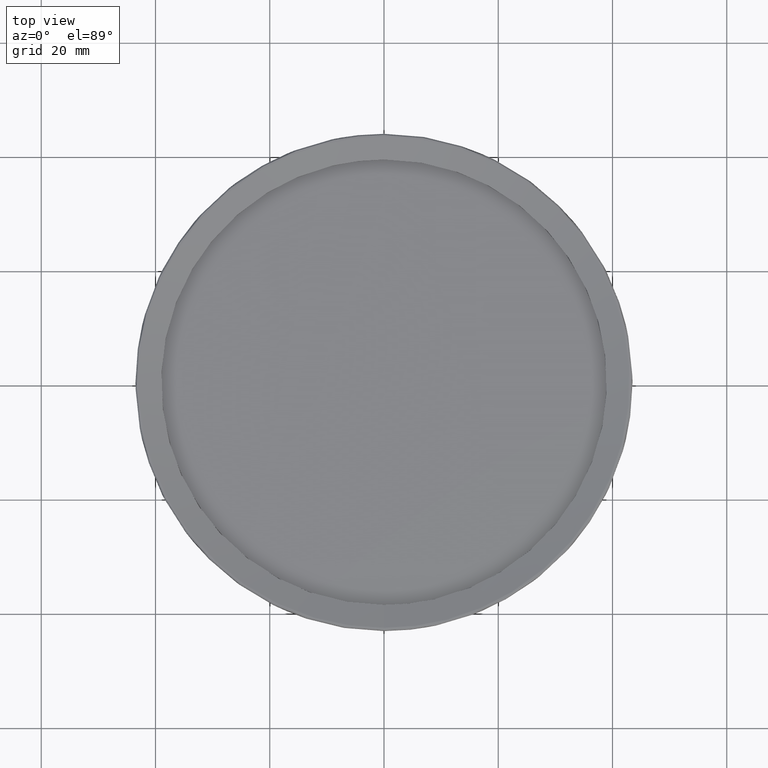
[diagram: clean part render]
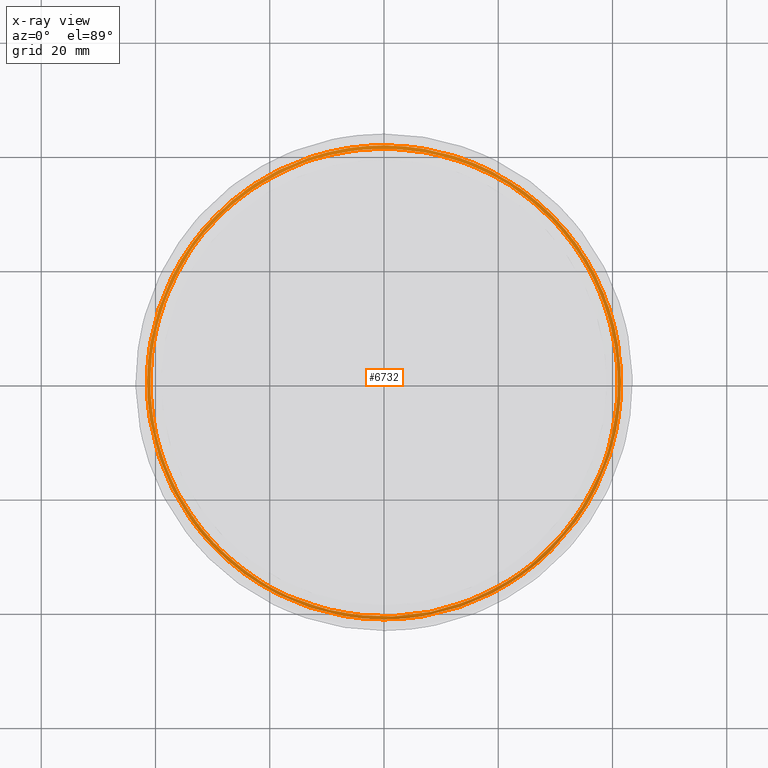
[diagram: x-ray — body ghosted, one internal face saturated and labeled with its STEP entity id]
A machine part, top view, then the same camera in x-ray: the body is ghosted and one INTERNAL B-rep face — a face not visible from any outside direction — is saturated and labeled: STEP entity #6732.
In plain terms, the highlighted face is a freeform B-spline surface patch.
Its self-contained STEP definition (entity closure, byte-faithful):
#4 = CARTESIAN_POINT ( 'NONE',  ( 40.17272695174860075, 10.76022758266149104, 52.50690959179656403 ) ) ;
#12 = CARTESIAN_POINT ( 'NONE',  ( -11.79353185801999970, -39.66173077855000173, 54.09881594574000019 ) ) ;
#44 = CARTESIAN_POINT ( 'NONE',  ( 40.96917976137288520, -2.419220999025836871, 52.16719279053289426 ) ) ;
#70 = CARTESIAN_POINT ( 'NONE',  ( 10.76023523346348121, 40.17273649778820044, 52.67357625846332070 ) ) ;
#79 = CARTESIAN_POINT ( 'NONE',  ( 42.11057761168999747, 9.900211693356000708, 52.28374476993000286 ) ) ;
#115 = CARTESIAN_POINT ( 'NONE',  ( -29.87747389276717058, 28.46881352040575663, 51.55547404053250915 ) ) ;
#128 = CARTESIAN_POINT ( 'NONE',  ( 3.624737637928146405, 41.34166160900525000, 51.70225507701573520 ) ) ;
#149 = CARTESIAN_POINT ( 'NONE',  ( 36.78852745489999876, 23.26572885985999761, 53.48456594575000622 ) ) ;
#182 = CARTESIAN_POINT ( 'NONE',  ( -36.92424836377949759, 17.90881009498778909, 51.60469279053248925 ) ) ;
#216 = CARTESIAN_POINT ( 'NONE',  ( 18.91270108422000007, 38.60563186051999907, 53.27667359413000270 ) ) ;
#253 = CARTESIAN_POINT ( 'NONE',  ( -11.38061978201072044, 39.66549515395830383, 51.47109904053262142 ) ) ;
#276 = EDGE_CURVE ( 'NONE', #485, #3712, #6187, .T. ) ;
#280 = CARTESIAN_POINT ( 'NONE',  ( 39.38047356646499253, -13.37196906937431962, 52.41315959179661377 ) ) ;
#287 = CARTESIAN_POINT ( 'NONE',  ( 37.01301591620000409, -18.88040471196000070, 51.02442359412999906 ) ) ;
#312 = CARTESIAN_POINT ( 'NONE',  ( -40.17273469201420255, 10.76023222993999617, 51.92357625846336333 ) ) ;
#325 = CARTESIAN_POINT ( 'NONE',  ( 4.827567011296240551, 40.86739159590457859, 51.40781779053275358 ) ) ;
#358 = CARTESIAN_POINT ( 'NONE',  ( 35.53514598148051107, 21.44157799769030603, 51.55312965169203920 ) ) ;
#395 = CARTESIAN_POINT ( 'NONE',  ( 40.77515862200115748, -5.632196182177938937, 51.15469279053998264 ) ) ;
#403 = CARTESIAN_POINT ( 'NONE',  ( 39.46773573242609956, -12.82385179237510009, 51.41724296412920125 ) ) ;
#429 = CARTESIAN_POINT ( 'NONE',  ( 38.63882716991882660, 15.15756759182151647, 51.52593431679609637 ) ) ;
#433 = CARTESIAN_POINT ( 'NONE',  ( -22.20213788013041167, 34.66013465988380915, 53.51719279054417910 ) ) ;
#437 = CARTESIAN_POINT ( 'NONE',  ( 17.01440371884283920, 37.99717952948459754, 53.64826470479829368 ) ) ;
#456 = CARTESIAN_POINT ( 'NONE',  ( -32.62914779890632389, 25.55451835437953534, 53.82656779054000395 ) ) ;
#485 = VERTEX_POINT ( 'NONE', #2463 ) ;
#499 = CARTESIAN_POINT ( 'NONE',  ( -21.96195955724999749, 37.26911533974000434, 51.58174476992999757 ) ) ;
#500 = CARTESIAN_POINT ( 'NONE',  ( 41.44083580771482644, 2.198969709518951543, 51.47705044471148028 ) ) ;
#509 = CARTESIAN_POINT ( 'NONE',  ( 22.84045433298958017, 34.80796994270151856, 53.62279283540663499 ) ) ;
#536 = EDGE_CURVE ( 'NONE', #3712, #2171, #10027, .T. ) ;
#542 = EDGE_CURVE ( 'NONE', #2171, #14071, #6936, .T. ) ;
#553 = ORIENTED_EDGE ( 'NONE', *, *, #536, .F. ) ;
#575 = CARTESIAN_POINT ( 'NONE',  ( 33.63644490046532809, 24.30378106701384766, 51.56829240461752306 ) ) ;
#647 = CARTESIAN_POINT ( 'NONE',  ( 38.36781257579678339, 15.81504657727015051, 51.52807761200014625 ) ) ;
#676 = CARTESIAN_POINT ( 'NONE',  ( -38.42477825401626745, 15.39663904086359558, 53.82656779054000395 ) ) ;
#694 = CARTESIAN_POINT ( 'NONE',  ( 29.78821124907211981, 28.93668361368241193, 51.59215308806013667 ) ) ;
#745 = CARTESIAN_POINT ( 'NONE',  ( 10.29117684447999892, 42.57113493655000269, 52.75488712154999860 ) ) ;
#772 = CARTESIAN_POINT ( 'NONE',  ( 22.88777027529989283, 34.61826393892939535, 51.62240779219653319 ) ) ;
#844 = CARTESIAN_POINT ( 'NONE',  ( 18.12314419597830550, 37.33386153306490485, 51.64545847735905681 ) ) ;
#864 = CARTESIAN_POINT ( 'NONE',  ( -21.37845049721029156, 35.72457185346420516, 53.80109592114835948 ) ) ;
#876 = CARTESIAN_POINT ( 'NONE',  ( 41.49921870463975182, -0.1604487521172846820, 51.46651459665447703 ) ) ;
#919 = CARTESIAN_POINT ( 'NONE',  ( 26.15663010534662547, 32.21891192249631075, 51.60858895410702019 ) ) ;
#932 = CARTESIAN_POINT ( 'NONE',  ( 37.51655690322836989, 16.63136175805963646, 53.24297404054476601 ) ) ;
#939 = CARTESIAN_POINT ( 'NONE',  ( 41.57950571195709699, -2.103382975854902082, 53.45722568436080735 ) ) ;
#951 = CARTESIAN_POINT ( 'NONE',  ( 40.92987675535688652, -6.857031033491834293, 51.43950306577250586 ) ) ;
#968 = CARTESIAN_POINT ( 'NONE',  ( 37.36157861665000013, -22.33388231702999960, 53.30906594574999957 ) ) ;
#979 = ORIENTED_EDGE ( 'NONE', *, *, #12584, .T. ) ;
#994 = CARTESIAN_POINT ( 'NONE',  ( 8.192346109023294076, 40.68313671878440374, 51.68712798813886877 ) ) ;
#1007 = CARTESIAN_POINT ( 'NONE',  ( -37.51833277811370948, 16.63114112907014785, 52.61016154053973537 ) ) ;
#1023 = CARTESIAN_POINT ( 'NONE',  ( 40.78709488937347771, -7.657895657596391459, 51.43682333114410454 ) ) ;
#1041 = CARTESIAN_POINT ( 'NONE',  ( -32.22135739021000234, -28.86198983382000094, 53.86324476992999877 ) ) ;
#1078 = CARTESIAN_POINT ( 'NONE',  ( -16.11045174813628478, 37.86112077799445785, 52.49063029053797180 ) ) ;
#1112 = CARTESIAN_POINT ( 'NONE',  ( 6.403797187021000425, -43.05439852844000370, 52.16831594573000075 ) ) ;
#1146 = CARTESIAN_POINT ( 'NONE',  ( 30.48165450329737070, 27.63734316714439032, 52.29375529053548632 ) ) ;
#1172 = CARTESIAN_POINT ( 'NONE',  ( 27.42429323295587196, 31.26552485029214523, 52.60065959179659956 ) ) ;
#1180 = CARTESIAN_POINT ( 'NONE',  ( 10.16460309328999934, 42.04754192976000127, 52.45924476992999530 ) ) ;
#1214 = CARTESIAN_POINT ( 'NONE',  ( 35.70867665376941602, 20.22788245248488082, 52.25859904053512395 ) ) ;
#1216 = ORIENTED_EDGE ( 'NONE', *, *, #13818, .F. ) ;
#1239 = CARTESIAN_POINT ( 'NONE',  ( 27.42432924499317792, -31.26556705156770377, 52.32982625846325675 ) ) ;
#1247 = CARTESIAN_POINT ( 'NONE',  ( -13.45090262072999998, 41.39762155676000077, 52.69481594573999672 ) ) ;
#1279 = CARTESIAN_POINT ( 'NONE',  ( 27.03797318861070309, -31.01969874505057589, 52.04063029053211409 ) ) ;
#1304 = CARTESIAN_POINT ( 'NONE',  ( 20.79771607536489597, 36.01495683304014506, 52.63190959179662087 ) ) ;
#1312 = CARTESIAN_POINT ( 'NONE',  ( -11.64758273577000125, -39.17090285154999663, 53.80317359412000400 ) ) ;
#1350 = CARTESIAN_POINT ( 'NONE',  ( 30.80928354501122612, -27.10974165338517849, 52.06172404053212688 ) ) ;
#1374 = CARTESIAN_POINT ( 'NONE',  ( 36.01495411407501024, -20.79771560873753700, 52.38190959179656403 ) ) ;
#1381 = CARTESIAN_POINT ( 'NONE',  ( -35.09390217021999803, -24.82948097585000014, 51.69717359412000235 ) ) ;
#1405 = CARTESIAN_POINT ( 'NONE',  ( -18.39073873184134911, 37.30149460599551503, 51.78815959179666351 ) ) ;
#1417 = CARTESIAN_POINT ( 'NONE',  ( -40.47024266734630515, -6.815279444751779714, 51.70313029053241394 ) ) ;
#1477 = CARTESIAN_POINT ( 'NONE',  ( -5.432258062146367195, 41.23241205254265651, 51.73607625846333491 ) ) ;
#1479 = CARTESIAN_POINT ( 'NONE',  ( -34.89083505456193279, 22.36966842421487556, 53.82656779053998974 ) ) ;
#1490 = CARTESIAN_POINT ( 'NONE',  ( 31.97916415107935606, -25.72309717284364083, 52.06875529053213825 ) ) ;
#1522 = CARTESIAN_POINT ( 'NONE',  ( 23.20555997756999744, 36.18805995065999781, 51.25842359412000349 ) ) ;
#1523 = CARTESIAN_POINT ( 'NONE',  ( 38.34566745943087795, 15.86864553926553967, 51.52825355417702724 ) ) ;
#1531 = CARTESIAN_POINT ( 'NONE',  ( 40.71578713947329220, -8.688832867380465785, 53.43175381496914156 ) ) ;
#1549 = CARTESIAN_POINT ( 'NONE',  ( -25.31457063084443604, 32.99695421161039377, 51.81940959179666351 ) ) ;
#1561 = CARTESIAN_POINT ( 'NONE',  ( -40.90849496891424053, -3.220855042408386382, 51.68906779053241962 ) ) ;
#1596 = CARTESIAN_POINT ( 'NONE',  ( 40.92004147066957387, 6.895382258729480185, 51.49638829336056745 ) ) ;
#1604 = CARTESIAN_POINT ( 'NONE',  ( -41.49995576892075633, -2.716171209626877303, 52.97565959180188599 ) ) ;
#1669 = CARTESIAN_POINT ( 'NONE',  ( 39.92880165640007561, 11.30448048579635412, 51.51286670095085896 ) ) ;
#1673 = CARTESIAN_POINT ( 'NONE',  ( -24.09672059400854849, -33.16627389058545106, 53.82753289951889997 ) ) ;
#1676 = CARTESIAN_POINT ( 'NONE',  ( -18.39073873185297714, -37.30149460598910593, 53.14232625847188984 ) ) ;
#1694 = CARTESIAN_POINT ( 'NONE',  ( -39.38046401391022044, 13.37196177652985085, 51.91315959179665640 ) ) ;
#1715 = ORIENTED_EDGE ( 'NONE', *, *, #542, .F. ) ;
#1740 = CARTESIAN_POINT ( 'NONE',  ( 41.14043509840414004, 5.508267736309210072, 51.49085592080386675 ) ) ;
#1748 = CARTESIAN_POINT ( 'NONE',  ( -2.103145253788134903E-06, -41.49971149531850045, 53.21570483374719629 ) ) ;
#1768 = CARTESIAN_POINT ( 'NONE',  ( -41.26803318072088445, 0.1320643193297101614, 53.82656779054001817 ) ) ;
#1785 = CARTESIAN_POINT ( 'NONE',  ( 24.03769339945102246, 33.83938956528382391, 51.61750581896924928 ) ) ;
#1818 = CARTESIAN_POINT ( 'NONE',  ( 39.64468034495314441, -12.27606087568018367, 51.42118582438501306 ) ) ;
#1861 = CARTESIAN_POINT ( 'NONE',  ( 26.90964725692107606, 31.59096526504163904, 51.60536238752469274 ) ) ;
#1933 = CARTESIAN_POINT ( 'NONE',  ( 17.10899990631350676, 37.81052791943565694, 51.65038729445597454 ) ) ;
#1963 = CARTESIAN_POINT ( 'NONE',  ( 41.49739593396184745, 0.4345353971569296259, 51.46920750735225880 ) ) ;
#1981 = CARTESIAN_POINT ( 'NONE',  ( -13.53413245610000004, 41.65377665101999582, 52.84263712154999837 ) ) ;
#2006 = CARTESIAN_POINT ( 'NONE',  ( 23.09525764679242599, 34.47999952314859939, 51.62150223944249205 ) ) ;
#2020 = CARTESIAN_POINT ( 'NONE',  ( 12.72595153969692028, 39.13210294080131035, 53.37656779054468359 ) ) ;
#2027 = CARTESIAN_POINT ( 'NONE',  ( 29.86695419799187334, -29.00418752981421022, 53.34260227209828287 ) ) ;
#2039 = CARTESIAN_POINT ( 'NONE',  ( 41.42883170206218324, -2.431802748928985736, 51.45629495606570458 ) ) ;
#2056 = CARTESIAN_POINT ( 'NONE',  ( -43.01331270249000482, 6.674187758217000166, 52.87031594574000337 ) ) ;
#2084 = CARTESIAN_POINT ( 'NONE',  ( 21.96169087925176200, 35.21475577978659288, 51.62661664089004887 ) ) ;
#2096 = CARTESIAN_POINT ( 'NONE',  ( -41.25739314836481242, -1.027084611190861585, 52.68047404053974248 ) ) ;
#2098 = VERTEX_POINT ( 'NONE', #12908 ) ;
#2113 = CARTESIAN_POINT ( 'NONE',  ( 40.27287542613365900, -10.04424560655077414, 51.42891614154502378 ) ) ;
#2131 = CARTESIAN_POINT ( 'NONE',  ( -11.72055729689000003, -39.41631681505000273, 53.95099476992999854 ) ) ;
#2169 = CARTESIAN_POINT ( 'NONE',  ( -31.72039811419610800, -26.03612565999135597, 52.78594279054102145 ) ) ;
#2171 = VERTEX_POINT ( 'NONE', #1748 ) ;
#2177 = CARTESIAN_POINT ( 'NONE',  ( 18.39073748477298409, -37.30148882967814217, 52.28815959179658535 ) ) ;
#2182 = CARTESIAN_POINT ( 'NONE',  ( 2.925332152473671066, 41.39925684419236518, 51.70461453585203060 ) ) ;
#2202 = CARTESIAN_POINT ( 'NONE',  ( -42.56745456422999752, -7.704892939644000016, 53.77549476992999899 ) ) ;
#2236 = CARTESIAN_POINT ( 'NONE',  ( -9.219040825973360498, 40.10323171821253396, 52.46250529053697420 ) ) ;
#2263 = CARTESIAN_POINT ( 'NONE',  ( 9.264854493448121088E-06, 41.49868413066225514, 52.71748398092890397 ) ) ;
#2271 = CARTESIAN_POINT ( 'NONE',  ( -25.20643139235999897, -35.15609129112000630, 52.89799476993000127 ) ) ;
#2306 = CARTESIAN_POINT ( 'NONE',  ( 40.77870504396802431, -4.623343213729599555, 53.15859904054421747 ) ) ;
#2314 = CARTESIAN_POINT ( 'NONE',  ( 2.716169694070612817, -41.49996835115009475, 52.22565959179665640 ) ) ;
#2331 = CARTESIAN_POINT ( 'NONE',  ( 41.49997182551813069, 2.716170034955449175, 52.47565959179659245 ) ) ;
#2339 = CARTESIAN_POINT ( 'NONE',  ( -43.16901718146999656, -2.784049799788999913, 51.75724476993000422 ) ) ;
#2371 = CARTESIAN_POINT ( 'NONE',  ( 18.69914755805091744, 36.66950938112176317, 51.35156779053331633 ) ) ;
#2396 = CARTESIAN_POINT ( 'NONE',  ( -36.01494386358082522, 20.79770903347854727, 52.88190959179998885 ) ) ;
#2405 = CARTESIAN_POINT ( 'NONE',  ( 38.96661659038000636, 18.78713269204999747, 51.31849476992999826 ) ) ;
#2439 = CARTESIAN_POINT ( 'NONE',  ( 24.83234139988900679, 32.81983695164167614, 51.32344279053395297 ) ) ;
#2463 = CARTESIAN_POINT ( 'NONE',  ( -4.329780578511509739E-06, -41.49915568192670179, 52.21666732783379672 ) ) ;
#2471 = CARTESIAN_POINT ( 'NONE',  ( 36.33325643383000170, 22.97780724774999683, 53.18892359413000293 ) ) ;
#2509 = CARTESIAN_POINT ( 'NONE',  ( 39.46773573242609956, -12.82385179237510009, 51.41724296412920125 ) ) ;
#2534 = CARTESIAN_POINT ( 'NONE',  ( 32.99694949442491065, -25.31457103097784866, 52.36107625846319991 ) ) ;
#2541 = CARTESIAN_POINT ( 'NONE',  ( 41.84838863537000009, 9.838570972144999871, 52.13592359412000121 ) ) ;
#2545 = CARTESIAN_POINT ( 'NONE',  ( -27.92968259219945182, 30.22980629708699496, 53.54531779054354246 ) ) ;
#2567 = CARTESIAN_POINT ( 'NONE',  ( -2.716170349922303107, 41.49993860997500406, 51.72565959179667772 ) ) ;
#2613 = CARTESIAN_POINT ( 'NONE',  ( -3.036208951144999890, -42.88200724592000057, 52.83792359413000383 ) ) ;
#2614 = CARTESIAN_POINT ( 'NONE',  ( 33.15046936488878515, 24.96289030766955364, 51.57185241853897395 ) ) ;
#2622 = CARTESIAN_POINT ( 'NONE',  ( -39.38046401391022755, 13.37196177652984730, 52.91315959180059991 ) ) ;
#2639 = CARTESIAN_POINT ( 'NONE',  ( -37.30148891823708368, 18.39073976296050716, 51.89232625846333491 ) ) ;
#2641 = CARTESIAN_POINT ( 'NONE',  ( -38.87854818860488137, -13.62291876706323102, 53.82656779053999685 ) ) ;
#2680 = EDGE_CURVE ( 'NONE', #14071, #3978, #11009, .T. ) ;
#2687 = CARTESIAN_POINT ( 'NONE',  ( 40.33042303982862364, 9.806405433691619322, 51.50757214196731582 ) ) ;
#2691 = CARTESIAN_POINT ( 'NONE',  ( -19.03589902138934775, 36.48271082675554311, 53.50313029054438374 ) ) ;
#2695 = CARTESIAN_POINT ( 'NONE',  ( 40.88710122085514342, 7.843173659303299239, 53.49543348844829183 ) ) ;
#2714 = CARTESIAN_POINT ( 'NONE',  ( -40.20090216818195472, -9.144749678899636081, 53.82656779053999685 ) ) ;
#2759 = CARTESIAN_POINT ( 'NONE',  ( 39.63871562867131360, 12.28624890001859526, 51.51623941357888015 ) ) ;
#2766 = CARTESIAN_POINT ( 'NONE',  ( 6.641673960502425977, -41.09952976346094999, 53.24071479453171918 ) ) ;
#2785 = CARTESIAN_POINT ( 'NONE',  ( -41.20993764388805403, 2.467847440059192987, 53.82656779053999685 ) ) ;
#2831 = CARTESIAN_POINT ( 'NONE',  ( 38.36449861936760897, 15.82307735831315121, 51.52810387815323878 ) ) ;
#2849 = FACE_OUTER_BOUND ( 'NONE', #12528, .T. ) ;
#2859 = CARTESIAN_POINT ( 'NONE',  ( -41.24405077729769431, 1.689284349313254552, 53.82656779053999685 ) ) ;
#2876 = CARTESIAN_POINT ( 'NONE',  ( 9.190650299620749308, 40.46725958806450762, 51.68369995783171333 ) ) ;
#2905 = CARTESIAN_POINT ( 'NONE',  ( 38.91017417164538728, 14.45214876445461805, 51.52358650231798265 ) ) ;
#2921 = CARTESIAN_POINT ( 'NONE',  ( -40.79716204136999380, 15.93077442016999790, 53.98338712155000252 ) ) ;
#2948 = CARTESIAN_POINT ( 'NONE',  ( 16.66895590792633897, 38.00595949821205011, 51.65248177338170876 ) ) ;
#2976 = CARTESIAN_POINT ( 'NONE',  ( 41.46753623235704822, 1.609287977283863524, 51.47446986588374074 ) ) ;
#2993 = CARTESIAN_POINT ( 'NONE',  ( -33.34842224799000121, 28.39176965601999925, 52.93038712154999814 ) ) ;
#3002 = CARTESIAN_POINT ( 'NONE',  ( -26.63238152425347849, -31.35512526043893899, 53.82656779053999685 ) ) ;
#3021 = CARTESIAN_POINT ( 'NONE',  ( 23.10774165626109777, 34.47163114678403417, 51.62144824089152451 ) ) ;
#3039 = CARTESIAN_POINT ( 'NONE',  ( -15.42519922685229439, 38.66954278695514091, 53.77562405175666527 ) ) ;
#3050 = CARTESIAN_POINT ( 'NONE',  ( 41.49944940218271938, 0.2097837773625342850, 51.46819168762080920 ) ) ;
#3069 = CARTESIAN_POINT ( 'NONE',  ( -4.190173843996999992, 43.59646744148000153, 53.80788712154999587 ) ) ;
#3094 = CARTESIAN_POINT ( 'NONE',  ( 17.78280788520854827, 37.49626959620753297, 51.64712201063081665 ) ) ;
#3109 = CARTESIAN_POINT ( 'NONE',  ( 36.29190479221428944, -20.41485532606358788, 53.09531779054250222 ) ) ;
#3116 = CARTESIAN_POINT ( 'NONE',  ( 22.11420174568311126, -35.27385464717749386, 53.30439446801080550 ) ) ;
#3149 = CARTESIAN_POINT ( 'NONE',  ( -26.40676467111999770, 34.94131072748999856, 53.89563712154999564 ) ) ;
#3175 = CARTESIAN_POINT ( 'NONE',  ( 25.95606235761964342, 32.38070792072094406, 51.60944074015623073 ) ) ;
#3188 = CARTESIAN_POINT ( 'NONE',  ( -10.77349946295807293, -39.72738736400843607, 52.88438029054142930 ) ) ;
#3225 = CARTESIAN_POINT ( 'NONE',  ( -19.08269047750000169, -37.49427810542000117, 54.06956594574000263 ) ) ;
#3263 = CARTESIAN_POINT ( 'NONE',  ( -38.36249494101909363, -15.21654393041914766, 52.73672404054027396 ) ) ;
#3298 = CARTESIAN_POINT ( 'NONE',  ( -32.42197408059999475, -29.04169042211000118, 54.01106594574000752 ) ) ;
#3334 = CARTESIAN_POINT ( 'NONE',  ( 32.03774186401663826, 26.01320181880727489, 53.28516154054478449 ) ) ;
#3360 = CARTESIAN_POINT ( 'NONE',  ( -10.76023332679577038, 40.17273698575993279, 52.75690959179746642 ) ) ;
#3368 = CARTESIAN_POINT ( 'NONE',  ( 19.03119314323999944, 38.84750428211999917, 53.42449476993999724 ) ) ;
#3400 = CARTESIAN_POINT ( 'NONE',  ( 37.03490493498355818, -18.20553423547344352, 52.10391154053218798 ) ) ;
#3425 = CARTESIAN_POINT ( 'NONE',  ( -13.37196581208834978, 39.38047380671088860, 52.76732625846435099 ) ) ;
#3434 = CARTESIAN_POINT ( 'NONE',  ( 6.364172561302000375, -42.78799183403999962, 52.02049476993000354 ) ) ;
#3491 = CARTESIAN_POINT ( 'NONE',  ( 25.31458413834304366, -32.99697766773181229, 52.31940959179658535 ) ) ;
#3499 = CARTESIAN_POINT ( 'NONE',  ( -40.54627480548999330, 15.83280613611000298, 53.83556594574000087 ) ) ;
#3532 = CARTESIAN_POINT ( 'NONE',  ( 4.155898775945847667, -41.41551086550580152, 51.94219279053218941 ) ) ;
#3566 = CARTESIAN_POINT ( 'NONE',  ( -4.112869854172999773, 42.79216170083999771, 53.36442359413000247 ) ) ;
#3628 = CARTESIAN_POINT ( 'NONE',  ( -5.432258062146364530, 41.23241205254266362, 52.73607625846372571 ) ) ;
#3636 = CARTESIAN_POINT ( 'NONE',  ( -39.63902451436000263, -16.63829455504999544, 52.66242359413000429 ) ) ;
#3709 = CARTESIAN_POINT ( 'NONE',  ( 36.17136110088463141, 20.34357268252079365, 51.54756713449184247 ) ) ;
#3712 = VERTEX_POINT ( 'NONE', #9632 ) ;
#3735 = CARTESIAN_POINT ( 'NONE',  ( -13.37196581210125856, -39.38047380670671060, 52.16315959179667772 ) ) ;
#3748 = CARTESIAN_POINT ( 'NONE',  ( 30.44832062184244137, 28.14148587938597856, 51.29531779053483120 ) ) ;
#3782 = CARTESIAN_POINT ( 'NONE',  ( 38.26474596900691694, 16.06303738915172374, 51.52890552138782709 ) ) ;
#3790 = CARTESIAN_POINT ( 'NONE',  ( -41.49995576891861049, 2.716171209653566176, 52.95482625846809555 ) ) ;
#3809 = CARTESIAN_POINT ( 'NONE',  ( -18.39073873185297359, -37.30149460598910593, 52.14232625846333491 ) ) ;
#3811 = CARTESIAN_POINT ( 'NONE',  ( -39.89075038910693394, 10.93707926394320218, 53.82656779054000395 ) ) ;
#3853 = CARTESIAN_POINT ( 'NONE',  ( -42.48100776540999135, 6.591592327240999971, 52.57467359412000718 ) ) ;
#3854 = CARTESIAN_POINT ( 'NONE',  ( 38.15215489013091599, 16.32977066532740906, 51.52983365618229783 ) ) ;
#3858 = CARTESIAN_POINT ( 'NONE',  ( -26.95785971486050414, -30.94165751745974191, 53.81250529054022280 ) ) ;
#3861 = CARTESIAN_POINT ( 'NONE',  ( -27.42430153043984120, -31.26553617260633544, 53.10065959180436579 ) ) ;
#3880 = CARTESIAN_POINT ( 'NONE',  ( -32.86433454904939566, 25.24711754455093882, 53.82656779054001106 ) ) ;
#3891 = CARTESIAN_POINT ( 'NONE',  ( 1.642852599640894908E-07, 41.49995518225014735, 51.71528301141800199 ) ) ;
#3927 = CARTESIAN_POINT ( 'NONE',  ( 40.80314375121098180, 7.559068836356003018, 51.49900095115570764 ) ) ;
#3956 = CARTESIAN_POINT ( 'NONE',  ( -37.17501738668626388, 18.25552880655110499, 53.82656779053999685 ) ) ;
#3978 = VERTEX_POINT ( 'NONE', #4156 ) ;
#4000 = CARTESIAN_POINT ( 'NONE',  ( 36.74419697859946865, 19.31558976633019853, 51.54241798455170454 ) ) ;
#4042 = CARTESIAN_POINT ( 'NONE',  ( 9.717445038939834134, 40.34366817744303546, 51.68184698616734352 ) ) ;
#4072 = CARTESIAN_POINT ( 'NONE',  ( 41.37280040074980292, -3.242448197566404122, 51.45280360033819989 ) ) ;
#4117 = CARTESIAN_POINT ( 'NONE',  ( 9.402746386543521240, 40.41827796614964541, 51.68295844882600676 ) ) ;
#4147 = CARTESIAN_POINT ( 'NONE',  ( 40.88892323114593097, -7.097363728074301825, 51.43869277896680359 ) ) ;
#4156 = CARTESIAN_POINT ( 'NONE',  ( -24.09672059400854849, -33.16627389058545106, 53.82753289951889997 ) ) ;
#4164 = CARTESIAN_POINT ( 'NONE',  ( 39.45184466823999969, 19.02107767055000309, 51.61413712154999445 ) ) ;
#4174 = CARTESIAN_POINT ( 'NONE',  ( -32.96853477949157707, -24.52734086145901315, 53.82656779054001106 ) ) ;
#4190 = CARTESIAN_POINT ( 'NONE',  ( 9.695849959633896731, 40.34886608010430109, 51.68192378591984948 ) ) ;
#4206 = CARTESIAN_POINT ( 'NONE',  ( -28.00511169997335514, -29.99887094663081655, 52.80703654054125451 ) ) ;
#4213 = CARTESIAN_POINT ( 'NONE',  ( -2.103145253788134903E-06, -41.49971149531850045, 53.21570483374719629 ) ) ;
#4268 = CARTESIAN_POINT ( 'NONE',  ( 26.46761113157362999, 31.96282675610986246, 51.60726109935138339 ) ) ;
#4282 = CARTESIAN_POINT ( 'NONE',  ( -20.79760648661134681, -35.50211933177026680, 52.84219279054143925 ) ) ;
#4288 = CARTESIAN_POINT ( 'NONE',  ( 16.22328619705172414, -38.34160034222318814, 53.27892259861912549 ) ) ;
#4317 = CARTESIAN_POINT ( 'NONE',  ( -4.164405847384998971, 43.32836552794000085, 53.66006594574999866 ) ) ;
#4343 = CARTESIAN_POINT ( 'NONE',  ( 9.617912659423693000, 40.36754688220981535, 51.68220038434346719 ) ) ;
#4355 = CARTESIAN_POINT ( 'NONE',  ( 2.009096084933603255, 40.98620883574178464, 53.41875529054463811 ) ) ;
#4369 = CARTESIAN_POINT ( 'NONE',  ( 1.267751532173469808, 41.48879090848219420, 51.71042025960558419 ) ) ;
#4372 = CARTESIAN_POINT ( 'NONE',  ( 40.49361685108970477, -9.139701821666491810, 51.43195054013747125 ) ) ;
#4390 = CARTESIAN_POINT ( 'NONE',  ( 43.30020535409000360, -4.438062882658000419, 51.37856594574000013 ) ) ;
#4408 = B_SPLINE_CURVE_WITH_KNOTS ( 'NONE', 3,
 ( #9431, #2567, #1477, #7240, #4973, #1405, #10603, #1549, #5999, #6147, #5855, #10309, #2639, #1694, #312, #4755, #8186, #9360, #7095, #5928, #11625, #9210, #4684, #13819, #9141, #10382, #11551, #8332, #3809, #3735, #7021, #8258, #13673, #12722 ),
 .UNSPECIFIED., .F., .F.,
 ( 4, 2, 2, 2, 2, 2, 2, 2, 2, 2, 2, 2, 2, 2, 2, 2, 4 ),
 ( 0.000000000000000000, 0.06249999999999983347, 0.1249999999999996669, 0.1874999999999995282, 0.2499999999999993894, 0.3124999999999993894, 0.3749999999999993894, 0.4374999999999994449, 0.4999999999999995559, 0.5624999999999995559, 0.6249999999999996669, 0.6874999999999996669, 0.7499999999999997780, 0.8124999999999997780, 0.8749999999999998890, 0.9374999999999998890, 1.000000000000000000 ),
 .UNSPECIFIED. ) ;
#4428 = CARTESIAN_POINT ( 'NONE',  ( 36.56825320694059656, 18.63036271075761263, 52.25156779053500600 ) ) ;
#4461 = CARTESIAN_POINT ( 'NONE',  ( -40.29538756961999724, 15.73483785203000096, 53.68774476993999656 ) ) ;
#4492 = CARTESIAN_POINT ( 'NONE',  ( 17.72750718272931891, 37.01193927497949687, 53.35547404054471343 ) ) ;
#4527 = CARTESIAN_POINT ( 'NONE',  ( 41.05666335312999848, -13.62590667498000130, 52.19599476992999598 ) ) ;
#4560 = CARTESIAN_POINT ( 'NONE',  ( -40.12989883669572322, -8.597157379697550894, 51.71016154053240399 ) ) ;
#4586 = CARTESIAN_POINT ( 'NONE',  ( -2.716170349922303107, 41.49993860997502537, 52.72565959179686956 ) ) ;
#4594 = CARTESIAN_POINT ( 'NONE',  ( -3.074253929451999934, -43.41933687555999910, 53.13356594574000269 ) ) ;
#4626 = CARTESIAN_POINT ( 'NONE',  ( -34.43120007560995077, 22.74843674193887466, 51.58359904053250489 ) ) ;
#4659 = CARTESIAN_POINT ( 'NONE',  ( 38.72400255147000081, 18.67016020272000176, 51.17067359412000371 ) ) ;
#4684 = CARTESIAN_POINT ( 'NONE',  ( -36.01494386359441791, -20.79770903345461974, 52.04857625846332070 ) ) ;
#4696 = CARTESIAN_POINT ( 'NONE',  ( 38.98863665883250462, -12.66817426863929974, 51.12729043613889246 ) ) ;
#4755 = CARTESIAN_POINT ( 'NONE',  ( -41.23242798631098793, 5.432264634667742342, 51.94440959179667772 ) ) ;
#4802 = CARTESIAN_POINT ( 'NONE',  ( 43.03227768659999697, -4.410601584781000284, 51.23074476992999848 ) ) ;
#4803 = CARTESIAN_POINT ( 'NONE',  ( 40.95750468480709827, 6.669221327429717405, 51.49549072609452338 ) ) ;
#4807 = CARTESIAN_POINT ( 'NONE',  ( -41.12777746494873554, 1.218425060976702889, 53.67188029054081966 ) ) ;
#4832 = CARTESIAN_POINT ( 'NONE',  ( -36.46743420564787641, 19.65195223537421754, 53.82656779054000395 ) ) ;
#4877 = CARTESIAN_POINT ( 'NONE',  ( 40.59505642956511906, 8.614916985662285143, 51.50308323120423637 ) ) ;
#4885 = CARTESIAN_POINT ( 'NONE',  ( 7.491986733671682330, 40.95305159168431430, 53.68647250888584210 ) ) ;
#4904 = CARTESIAN_POINT ( 'NONE',  ( -40.26576762264465259, 9.418759140634820781, 53.82656779053999685 ) ) ;
#4946 = CARTESIAN_POINT ( 'NONE',  ( -25.04949105062000214, -34.93720235365000093, 52.75017359412999696 ) ) ;
#4947 = CARTESIAN_POINT ( 'NONE',  ( 38.31902468874438483, 15.93290187061755958, 51.52846667335347774 ) ) ;
#4955 = CARTESIAN_POINT ( 'NONE',  ( -26.71824947981185261, 31.75486084565024569, 53.82684078147949691 ) ) ;
#4973 = CARTESIAN_POINT ( 'NONE',  ( -13.37196581208834978, 39.38047380671091702, 51.76732625846334912 ) ) ;
#4975 = CARTESIAN_POINT ( 'NONE',  ( -29.03850412081694543, 29.66038154957787398, 53.82656779053999685 ) ) ;
#5022 = CARTESIAN_POINT ( 'NONE',  ( 39.84650445828078347, 11.59252926194181832, 51.51385868363692566 ) ) ;
#5039 = CARTESIAN_POINT ( 'NONE',  ( 31.06655950782000275, 30.87197322791000076, 52.66713712154999172 ) ) ;
#5049 = CARTESIAN_POINT ( 'NONE',  ( -34.02935476362997491, 23.67873146493401748, 53.82656779053999685 ) ) ;
#5095 = CARTESIAN_POINT ( 'NONE',  ( 39.94243451213386464, 11.25610435350241900, 51.51269994995146106 ) ) ;
#5099 = CARTESIAN_POINT ( 'NONE',  ( -1.611815030764172096, 41.00857924604314064, 53.43281779054462532 ) ) ;
#5113 = CARTESIAN_POINT ( 'NONE',  ( -35.75351425477000333, -25.29616677261000390, 52.14063712153999575 ) ) ;
#5123 = CARTESIAN_POINT ( 'NONE',  ( -40.52744860096114365, -7.623268170509639674, 53.82656779054001817 ) ) ;
#5140 = CARTESIAN_POINT ( 'NONE',  ( 31.42949547293127210, 27.10832899170644339, 51.58297559348540773 ) ) ;
#5171 = CARTESIAN_POINT ( 'NONE',  ( 41.49231039032264334, -0.7713515638204617719, 51.46374136103021613 ) ) ;
#5215 = CARTESIAN_POINT ( 'NONE',  ( 32.61815918885375964, 25.65616306792380641, 51.57551365108484731 ) ) ;
#5233 = CARTESIAN_POINT ( 'NONE',  ( 3.320924203385847928, -41.49997117080729936, 53.22797885983582233 ) ) ;
#5240 = EDGE_CURVE ( 'NONE', #3978, #2098, #13822, .T. ) ;
#5245 = CARTESIAN_POINT ( 'NONE',  ( 41.49328902964977317, -0.7175826320097578037, 51.46398574333618825 ) ) ;
#5248 = VERTEX_POINT ( 'NONE', #2509 ) ;
#5262 = CARTESIAN_POINT ( 'NONE',  ( -38.70661104489000337, 20.49409852003000054, 51.96513712154000331 ) ) ;
#5290 = CARTESIAN_POINT ( 'NONE',  ( 21.63498490211078717, 35.41682016957964407, 51.62815661052008664 ) ) ;
#5304 = ORIENTED_EDGE ( 'NONE', *, *, #2680, .F. ) ;
#5309 = CARTESIAN_POINT ( 'NONE',  ( -32.99697019082617544, -25.31458274314027790, 53.06940959180373341 ) ) ;
#5338 = CARTESIAN_POINT ( 'NONE',  ( -19.20076799484999697, -37.72628057273000479, 54.21738712154999718 ) ) ;
#5362 = CARTESIAN_POINT ( 'NONE',  ( 18.72862429246594829, 37.03267966690332003, 51.64245268934616462 ) ) ;
#5367 = VERTEX_POINT ( 'NONE', #3891 ) ;
#5375 = CARTESIAN_POINT ( 'NONE',  ( 34.99251074081218604, 21.44128689616396599, 53.26406779054477170 ) ) ;
#5413 = CARTESIAN_POINT ( 'NONE',  ( 23.49633542749999648, 36.64151159851999751, 51.55406594574000678 ) ) ;
#5440 = CARTESIAN_POINT ( 'NONE',  ( 25.37584798160916932, 32.84063845597491849, 51.61189574694008542 ) ) ;
#5452 = CARTESIAN_POINT ( 'NONE',  ( 36.74736171687299446, 18.27453399004749457, 53.25000529054479159 ) ) ;
#5469 = CARTESIAN_POINT ( 'NONE',  ( 40.75003376142670675, -7.850828438818443722, 51.43618585014060329 ) ) ;
#5486 = CARTESIAN_POINT ( 'NONE',  ( -17.09862538563999834, -40.02907525788000243, 52.08056594573000098 ) ) ;
#5523 = CARTESIAN_POINT ( 'NONE',  ( -5.627364961430000534, 40.77375755312899486, 52.44844279053646119 ) ) ;
#5556 = CARTESIAN_POINT ( 'NONE',  ( 32.85374812852000304, -25.15495012803999941, 51.29081594574000036 ) ) ;
#5589 = CARTESIAN_POINT ( 'NONE',  ( 40.86485386902683814, 4.823983426211178482, 52.19531779053356502 ) ) ;
#5616 = CARTESIAN_POINT ( 'NONE',  ( -18.39073873184135266, 37.30149460599553635, 52.78815959179809880 ) ) ;
#5624 = CARTESIAN_POINT ( 'NONE',  ( 0.8204575187811999903, 43.52033128315999733, 51.64181594573999945 ) ) ;
#5657 = CARTESIAN_POINT ( 'NONE',  ( 26.94361151181110259, 31.25812021218406400, 53.31328654054471627 ) ) ;
#5669 = CARTESIAN_POINT ( 'NONE',  ( 0.5734617255749531184, 41.50001909839370029, 51.71301058589035904 ) ) ;
#5691 = CARTESIAN_POINT ( 'NONE',  ( 37.13039725091999799, -22.19568747589000068, 53.16124476993999792 ) ) ;
#5725 = CARTESIAN_POINT ( 'NONE',  ( 12.87155188782249482, -38.96964740416791528, 51.97734904053218230 ) ) ;
#5751 = CARTESIAN_POINT ( 'NONE',  ( 31.26552810281392425, -27.42429775286296589, 52.35065959179657114 ) ) ;
#5759 = CARTESIAN_POINT ( 'NONE',  ( 27.66175608762000238, -32.90763377065000128, 51.96042359412000167 ) ) ;
#5831 = CARTESIAN_POINT ( 'NONE',  ( 0.8153807928173999464, 43.25104154760999364, 51.49399476992999780 ) ) ;
#5855 = CARTESIAN_POINT ( 'NONE',  ( -32.99697019081010296, 25.31458274316033652, 51.86107625846334201 ) ) ;
#5903 = CARTESIAN_POINT ( 'NONE',  ( -18.84653544278999959, -37.03027317078999658, 53.77392359412000644 ) ) ;
#5904 = CARTESIAN_POINT ( 'NONE',  ( 40.68065913220141283, 8.202045228633298990, 51.50150154734667751 ) ) ;
#5928 = CARTESIAN_POINT ( 'NONE',  ( -40.17273469201808922, -10.76023222992700390, 52.00690959179671324 ) ) ;
#5930 = CARTESIAN_POINT ( 'NONE',  ( -40.98631155328924791, -4.536116380028231809, 53.82656779054001106 ) ) ;
#5941 = CARTESIAN_POINT ( 'NONE',  ( 38.02336341945539999, 15.75909589580257553, 51.23906779053720584 ) ) ;
#5973 = CARTESIAN_POINT ( 'NONE',  ( 36.25668753128469035, 20.19105868094492706, 51.54680233402929446 ) ) ;
#5982 = CARTESIAN_POINT ( 'NONE',  ( 30.46163361266907188, 28.37901324642890799, 53.58458503131911499 ) ) ;
#5999 = CARTESIAN_POINT ( 'NONE',  ( -27.42430153043460450, 31.26553617261051343, 51.82982625846334912 ) ) ;
#6001 = CARTESIAN_POINT ( 'NONE',  ( -36.68810568161597985, -18.60911377826085555, 53.82656779053999685 ) ) ;
#6012 = CARTESIAN_POINT ( 'NONE',  ( 41.12328915294687448, 1.600108425553680158, 51.18281779053946678 ) ) ;
#6046 = CARTESIAN_POINT ( 'NONE',  ( 42.76435001910000011, -4.383140286937999619, 51.08292359412000394 ) ) ;
#6047 = CARTESIAN_POINT ( 'NONE',  ( 41.24542255077100350, 4.635952858826490441, 51.48731184936696792 ) ) ;
#6055 = CARTESIAN_POINT ( 'NONE',  ( -13.37196581210126212, -39.38047380670673192, 53.16315959180563766 ) ) ;
#6119 = CARTESIAN_POINT ( 'NONE',  ( 40.14366850918593599, 10.53785467337300652, 51.51022322806338138 ) ) ;
#6123 = CARTESIAN_POINT ( 'NONE',  ( -30.80893476377415041, -27.11066342744542368, 53.79141154054043739 ) ) ;
#6127 = CARTESIAN_POINT ( 'NONE',  ( 37.84978812591720754, 17.33989669270067324, 53.53364129253577630 ) ) ;
#6147 = CARTESIAN_POINT ( 'NONE',  ( -31.26555995888718442, 27.42432644616024362, 51.85065959179668482 ) ) ;
#6187 = B_SPLINE_CURVE_WITH_KNOTS ( 'NONE', 3,
 ( #8886, #2314, #9989, #13347, #12183, #2177, #6765, #3491, #1239, #5751, #2534, #1374, #12542, #280, #12470, #8973, #11175, #2331, #8081, #4, #7882, #8012, #11106, #7946, #10007, #1172, #11372, #1304, #13567, #12268, #70, #10207, #8904, #2263 ),
 .UNSPECIFIED., .F., .F.,
 ( 4, 2, 2, 2, 2, 2, 2, 2, 2, 2, 2, 2, 2, 2, 2, 2, 4 ),
 ( 0.000000000000000000, 0.06250000000000009714, 0.1250000000000001943, 0.1875000000000003331, 0.2500000000000004441, 0.3125000000000004996, 0.3750000000000004996, 0.4375000000000005551, 0.5000000000000005551, 0.5625000000000006661, 0.6250000000000006661, 0.6875000000000006661, 0.7500000000000005551, 0.8125000000000004441, 0.8750000000000003331, 0.9375000000000002220, 1.000000000000000000 ),
 .UNSPECIFIED. ) ;
#6195 = CARTESIAN_POINT ( 'NONE',  ( 41.45572312668600290, 1.889943396585311186, 51.47570336810407099 ) ) ;
#6199 = CARTESIAN_POINT ( 'NONE',  ( -33.05858027389025011, 25.02284209691771011, 53.57344279054269975 ) ) ;
#6222 = CARTESIAN_POINT ( 'NONE',  ( -40.88761786146384480, -5.312517163813233800, 53.82656779054000395 ) ) ;
#6239 = CARTESIAN_POINT ( 'NONE',  ( 26.81427477389899394, 31.67213653486045644, 51.60577345967760721 ) ) ;
#6269 = CARTESIAN_POINT ( 'NONE',  ( 41.32616270339759978, -3.831349017600837570, 51.45033443900344849 ) ) ;
#6287 = CARTESIAN_POINT ( 'NONE',  ( -3.093276418582000087, -43.68800169037999837, 53.28138712154999723 ) ) ;
#6314 = CARTESIAN_POINT ( 'NONE',  ( 8.555174468343484051, 40.60756144737829487, 51.68589291251294782 ) ) ;
#6363 = CARTESIAN_POINT ( 'NONE',  ( -43.70657525200000038, -2.818717914175999706, 52.05288712153999597 ) ) ;
#6388 = CARTESIAN_POINT ( 'NONE',  ( 26.99984559228532532, 31.51380587874569272, 51.60497300934238041 ) ) ;
#6407 = CARTESIAN_POINT ( 'NONE',  ( -5.432258062151942291, -41.23241205254200992, 53.19440959180625583 ) ) ;
#6419 = CARTESIAN_POINT ( 'NONE',  ( 41.46152438843997601, -1.823497038594593889, 51.45898354775365391 ) ) ;
#6437 = CARTESIAN_POINT ( 'NONE',  ( 23.64172315245000178, 36.86823742245999824, 51.70188712154000399 ) ) ;
#6461 = CARTESIAN_POINT ( 'NONE',  ( 18.87398834509753698, 36.95878174010424289, 51.64172511948888911 ) ) ;
#6475 = CARTESIAN_POINT ( 'NONE',  ( 41.02834594123007861, 0.8030789736167286419, 53.17969279054452869 ) ) ;
#6494 = CARTESIAN_POINT ( 'NONE',  ( 40.82196015618633567, -7.469167797567190625, 51.43745089018116090 ) ) ;
#6511 = CARTESIAN_POINT ( 'NONE',  ( -33.14334196643999775, 28.21717092769000246, 52.78256594574000360 ) ) ;
#6538 = CARTESIAN_POINT ( 'NONE',  ( 6.982118011523973600, 40.91481300476096550, 51.69120281044402532 ) ) ;
#6550 = CARTESIAN_POINT ( 'NONE',  ( -40.78755387913797392, 6.269317316860377964, 52.65234904053969700 ) ) ;
#6567 = CARTESIAN_POINT ( 'NONE',  ( 41.49657184400354026, -0.4910328605956232884, 51.46501477993643192 ) ) ;
#6584 = CARTESIAN_POINT ( 'NONE',  ( 19.14968520233999882, 39.08937670366999839, 53.57231594574999889 ) ) ;
#6621 = CARTESIAN_POINT ( 'NONE',  ( 39.97616733286928792, 10.23501092173811067, 52.21641154053420308 ) ) ;
#6634 = CARTESIAN_POINT ( 'NONE',  ( 3.865238801261364987, 41.31986621413805238, 51.70145122764852630 ) ) ;
#6653 = CARTESIAN_POINT ( 'NONE',  ( 30.87551182572000030, 30.68212217845999845, 52.51931594574000428 ) ) ;
#6688 = CARTESIAN_POINT ( 'NONE',  ( 7.439593575538534509, 40.58883367120756702, 53.39766154054463243 ) ) ;
#6722 = CARTESIAN_POINT ( 'NONE',  ( 20.12595974805000409, -38.59579763754000226, 53.22131594574000246 ) ) ;
#6732 = ADVANCED_FACE ( 'NONE', ( #2849 ), #8337, .F. ) ;
#6756 = CARTESIAN_POINT ( 'NONE',  ( -14.24991479697978214, -38.60655707676909287, 52.87031779054145630 ) ) ;
#6765 = CARTESIAN_POINT ( 'NONE',  ( 20.79770499705457709, -36.01494166978828559, 52.29857625846328517 ) ) ;
#6791 = CARTESIAN_POINT ( 'NONE',  ( -38.23054878140999335, 20.24203649037000119, 51.66949476992999735 ) ) ;
#6858 = CARTESIAN_POINT ( 'NONE',  ( -13.28444295003999898, 40.88531136820999734, 52.39917359412000053 ) ) ;
#6891 = CARTESIAN_POINT ( 'NONE',  ( 40.10598458613890216, -9.222193816564253410, 51.14063029053998122 ) ) ;
#6923 = CARTESIAN_POINT ( 'NONE',  ( 30.49341646146000073, 30.30242007962000272, 52.22367359412000098 ) ) ;
#6936 = B_SPLINE_CURVE_WITH_KNOTS ( 'NONE', 3,
 ( #4213, #5233, #2766, #7500, #4288, #3116, #7077, #2027, #8669, #10511, #12705, #8313, #1531, #939, #7577, #2695, #13801, #6127, #10786, #7222, #5982, #8241, #509, #437, #13126, #4885, #9685, #9343, #7151, #12034, #3039, #864, #11606, #4955 ),
 .UNSPECIFIED., .F., .F.,
 ( 4, 2, 2, 2, 2, 2, 2, 2, 2, 2, 2, 2, 2, 2, 2, 2, 4 ),
 ( 0.000000000000000000, 0.06250000000000001388, 0.1250000000000000278, 0.1875000000000000555, 0.2500000000000000555, 0.3125000000000000000, 0.3749999999999999445, 0.4374999999999999445, 0.4999999999999998890, 0.5624999999999998890, 0.6249999999999998890, 0.6874999999999998890, 0.7499999999999998890, 0.8125000000000000000, 0.8750000000000000000, 0.9375000000000000000, 1.000000000000000000 ),
 .UNSPECIFIED. ) ;
#6962 = CARTESIAN_POINT ( 'NONE',  ( -23.87053531509622317, -34.10749834724632734, 51.82969279053229172 ) ) ;
#6995 = CARTESIAN_POINT ( 'NONE',  ( 36.89921588511000294, -22.05749263491999912, 53.01342359412999627 ) ) ;
#7021 = CARTESIAN_POINT ( 'NONE',  ( -10.76023332680930444, -40.17273698575723984, 52.17357625846332780 ) ) ;
#7023 = CARTESIAN_POINT ( 'NONE',  ( -30.63889407916643393, 27.94819933798786593, 53.82656779053998264 ) ) ;
#7034 = CARTESIAN_POINT ( 'NONE',  ( -25.71854904592661839, 31.98096922631649974, 51.53438029053253189 ) ) ;
#7069 = CARTESIAN_POINT ( 'NONE',  ( 33.61991494679362091, 24.32663390159868300, 51.56841730987737549 ) ) ;
#7073 = CARTESIAN_POINT ( 'NONE',  ( -39.38585712832801988, 11.95782023046669096, 53.62969279054119198 ) ) ;
#7077 = CARTESIAN_POINT ( 'NONE',  ( 24.87440445128560640, -33.38467040413768672, 53.31713040270663129 ) ) ;
#7095 = CARTESIAN_POINT ( 'NONE',  ( -41.23242798631432038, -5.432264634646961632, 51.98607625846334912 ) ) ;
#7097 = CARTESIAN_POINT ( 'NONE',  ( -38.00802950023246751, -15.79288577018143158, 53.82656779053999685 ) ) ;
#7107 = CARTESIAN_POINT ( 'NONE',  ( 34.67292308840290360, 22.17834597984792921, 51.26719279053596523 ) ) ;
#7142 = CARTESIAN_POINT ( 'NONE',  ( 0.8103040671007001317, 42.98175181204999973, 51.34617359412000326 ) ) ;
#7143 = CARTESIAN_POINT ( 'NONE',  ( 36.24776481387850424, 20.20706610219152921, 51.54688252176071472 ) ) ;
#7147 = CARTESIAN_POINT ( 'NONE',  ( -8.808828185640424024, 40.19911127996810052, 53.46094279054460685 ) ) ;
#7151 = CARTESIAN_POINT ( 'NONE',  ( -5.788512596938566013, 41.22833809934667926, 53.73741624766915947 ) ) ;
#7215 = CARTESIAN_POINT ( 'NONE',  ( 36.25411727627594871, 20.19567114411639253, 51.54682543775975034 ) ) ;
#7222 = CARTESIAN_POINT ( 'NONE',  ( 32.64149290748341770, 25.84209701766809530, 53.57184909662328920 ) ) ;
#7240 = CARTESIAN_POINT ( 'NONE',  ( -10.76023332679576505, 40.17273698575993279, 51.75690959179667061 ) ) ;
#7242 = CARTESIAN_POINT ( 'NONE',  ( -41.19333772847438979, -2.205434465597222893, 53.82656779053999685 ) ) ;
#7287 = CARTESIAN_POINT ( 'NONE',  ( 39.44340151131985550, 12.90588788921764163, 51.51835651400717353 ) ) ;
#7291 = CARTESIAN_POINT ( 'NONE',  ( -40.28027819386308295, 8.415549444634120135, 53.64375529054100156 ) ) ;
#7306 = CARTESIAN_POINT ( 'NONE',  ( 28.18167628622000009, -33.52615355806999986, 52.40388712153999506 ) ) ;
#7331 = CARTESIAN_POINT ( 'NONE',  ( 23.00715422844927360, 34.53889606934347256, 51.62188494458346355 ) ) ;
#7362 = CARTESIAN_POINT ( 'NONE',  ( 37.83115490725589325, 17.06291712791371751, 51.53259497618871166 ) ) ;
#7380 = CARTESIAN_POINT ( 'NONE',  ( 20.25049267823999699, -38.83461595149000090, 53.36913712154999700 ) ) ;
#7408 = CARTESIAN_POINT ( 'NONE',  ( 6.012765612271033788, 41.07664874642012620, 51.69441215255068300 ) ) ;
#7438 = CARTESIAN_POINT ( 'NONE',  ( 41.48045759063811744, -1.361695882768859001, 51.46105740409049645 ) ) ;
#7455 = CARTESIAN_POINT ( 'NONE',  ( -17.20442614988999708, -40.27676223020000634, 52.22838712154000262 ) ) ;
#7481 = CARTESIAN_POINT ( 'NONE',  ( 26.62563289520249654, 31.83143583196187265, 51.60658462805311331 ) ) ;
#7500 = CARTESIAN_POINT ( 'NONE',  ( 13.09300448426948194, -39.52016629665563130, 53.26618666392327839 ) ) ;
#7511 = CARTESIAN_POINT ( 'NONE',  ( 41.48786168342128633, 1.042495865850497694, 51.47194824380825651 ) ) ;
#7529 = CARTESIAN_POINT ( 'NONE',  ( 37.59275998243000316, -22.47207715807000028, 53.45688712155000388 ) ) ;
#7540 = CARTESIAN_POINT ( 'NONE',  ( -32.00976969893456214, -25.74863076584050603, 53.82656779053998974 ) ) ;
#7556 = CARTESIAN_POINT ( 'NONE',  ( 22.42068179869730571, 34.92292319638042386, 51.62450376608592251 ) ) ;
#7570 = CARTESIAN_POINT ( 'NONE',  ( 27.09562846645427214, -31.60268294049877724, 53.03906779054147336 ) ) ;
#7577 = CARTESIAN_POINT ( 'NONE',  ( 41.61418449848915202, 1.241243741535884126, 53.46996161905658340 ) ) ;
#7589 = CARTESIAN_POINT ( 'NONE',  ( 41.47722048327911182, 1.359400780439530054, 51.47336643779448195 ) ) ;
#7634 = CARTESIAN_POINT ( 'NONE',  ( 26.97819808247175644, 31.53235663053477467, 51.60506651057261962 ) ) ;
#7648 = CARTESIAN_POINT ( 'NONE',  ( -23.86934533143648451, -33.52052153479106522, 52.82813029054138809 ) ) ;
#7681 = CARTESIAN_POINT ( 'NONE',  ( -26.24437297853999951, 34.72643477956000169, 53.74781594575000554 ) ) ;
#7719 = CARTESIAN_POINT ( 'NONE',  ( -28.23422956653266525, 29.93913805310261367, 52.54688029053946963 ) ) ;
#7736 = CARTESIAN_POINT ( 'NONE',  ( 41.26172428190405128, -4.513448834665382492, 51.44772829763082456 ) ) ;
#7752 = CARTESIAN_POINT ( 'NONE',  ( -25.36337173432000469, -35.37498022844000189, 53.04581594574000292 ) ) ;
#7788 = CARTESIAN_POINT ( 'NONE',  ( -25.47470833095145082, 32.33221961243846465, 52.53281779053924794 ) ) ;
#7814 = CARTESIAN_POINT ( 'NONE',  ( -25.31457063084442893, 32.99695421161038666, 52.81940959179873119 ) ) ;
#7823 = CARTESIAN_POINT ( 'NONE',  ( 20.00142681796999966, -38.35697932352000095, 53.07349476993999815 ) ) ;
#7856 = CARTESIAN_POINT ( 'NONE',  ( 34.11982035494835941, -22.80318828840959000, 52.08281779053216098 ) ) ;
#7882 = CARTESIAN_POINT ( 'NONE',  ( 39.38045604508555897, 13.37195571104119374, 52.51732625846322122 ) ) ;
#7890 = CARTESIAN_POINT ( 'NONE',  ( -16.99282462115999692, -39.78138828564999585, 51.93274476992999666 ) ) ;
#7922 = CARTESIAN_POINT ( 'NONE',  ( 39.26067717512614763, 12.32098654576928709, 51.22500529053785812 ) ) ;
#7946 = CARTESIAN_POINT ( 'NONE',  ( 32.99697990868276065, 25.31458654551075682, 52.56940959179657114 ) ) ;
#7954 = CARTESIAN_POINT ( 'NONE',  ( -40.13571820321000416, -16.84677940035000177, 52.95806594573999604 ) ) ;
#7988 = CARTESIAN_POINT ( 'NONE',  ( -2.414460792435833003, 40.96956437843225984, 51.43594279053266405 ) ) ;
#8012 = CARTESIAN_POINT ( 'NONE',  ( 37.30148872160518181, 18.39073879295055391, 52.53815959179655692 ) ) ;
#8020 = CARTESIAN_POINT ( 'NONE',  ( -42.90023814622000486, -2.766715742334999728, 51.60942359412000258 ) ) ;
#8057 = CARTESIAN_POINT ( 'NONE',  ( 40.81063457768570402, 5.241489969017226080, 51.19688029053897793 ) ) ;
#8081 = CARTESIAN_POINT ( 'NONE',  ( 41.23244470848393917, 5.432266789215217884, 52.48607625846324254 ) ) ;
#8089 = CARTESIAN_POINT ( 'NONE',  ( 37.24491026316999864, -18.99869442742999937, 51.17224476993000337 ) ) ;
#8160 = CARTESIAN_POINT ( 'NONE',  ( 41.42499767025660873, 2.472863561742799643, 51.47822999461743620 ) ) ;
#8186 = CARTESIAN_POINT ( 'NONE',  ( -41.49995576891861049, 2.716171209653563512, 51.95482625846331359 ) ) ;
#8188 = CARTESIAN_POINT ( 'NONE',  ( -41.25796184962553070, -0.6451585011854502616, 53.82656779054001106 ) ) ;
#8199 = CARTESIAN_POINT ( 'NONE',  ( 14.58107344748555789, -38.36264787933034626, 51.98438029053215104 ) ) ;
#8231 = CARTESIAN_POINT ( 'NONE',  ( 23.35094770246000095, 36.41478577464999944, 51.40624476992999803 ) ) ;
#8232 = CARTESIAN_POINT ( 'NONE',  ( 39.95215742156516114, 11.22148610104625455, 51.51258059567253866 ) ) ;
#8241 = CARTESIAN_POINT ( 'NONE',  ( 25.56091588347386434, 32.86199504263102256, 53.61005690071078078 ) ) ;
#8258 = CARTESIAN_POINT ( 'NONE',  ( -5.432258062151942291, -41.23241205254198860, 52.19440959179667061 ) ) ;
#8306 = CARTESIAN_POINT ( 'NONE',  ( 35.21263502308668336, 21.96365390303779819, 51.55582752049747342 ) ) ;
#8313 = CARTESIAN_POINT ( 'NONE',  ( 39.88699266823110889, -11.92933114446390341, 53.41901788027328024 ) ) ;
#8332 = CARTESIAN_POINT ( 'NONE',  ( -20.79771267333763163, -36.01495462328167463, 52.13190959179666351 ) ) ;
#8334 = CARTESIAN_POINT ( 'NONE',  ( -40.84106259548499196, 6.350511352648584129, 53.82656779054000395 ) ) ;
#8337 = B_SPLINE_SURFACE_WITH_KNOTS ( 'NONE', 3, 3, ( 
 ( #13158, #5338, #10815, #9640, #2921, #3149, #3069, #13957, #14103, #12063, #7529, #7380, #6287, #11987, #9791, #10889, #2993, #1981, #745, #5039, #8546, #13080, #7306, #9496, #7455, #5113, #6363, #5262, #9715, #14179, #6437, #4164, #14256, #8699, #10016 ),
 ( #12, #3225, #3298, #13233, #3499, #7681, #4317, #6584, #149, #11115, #968, #6722, #4594, #7752, #7954, #2056, #6511, #1247, #11043, #6653, #9047, #13508, #12207, #1112, #5486, #12137, #10967, #13439, #11249, #5624, #5413, #10149, #4390, #8913, #5556 ),
 ( #2131, #8772, #1041, #2202, #4461, #9941, #13372, #3368, #9867, #14331, #5691, #7823, #12277, #2271, #14404, #8842, #13303, #11183, #1180, #10083, #79, #4527, #8981, #3434, #7890, #12344, #2339, #6791, #499, #5831, #8231, #2405, #4802, #8089, #12696 ),
 ( #1312, #5903, #13575, #13647, #9116, #13866, #3566, #216, #2471, #10502, #6995, #11314, #2613, #4946, #3636, #3853, #12411, #6858, #11597, #6923, #2541, #9405, #5759, #12549, #11451, #1381, #8020, #10216, #9333, #7142, #1522, #4659, #6046, #287, #9258 ) ),
 .UNSPECIFIED., .F., .F., .F.,
 ( 4, 4 ),
 ( 4, 1, 1, 1, 1, 1, 1, 1, 1, 1, 1, 1, 1, 1, 1, 1, 1, 1, 1, 1, 1, 1, 1, 1, 1, 1, 1, 1, 1, 1, 1, 1, 4 ),
 ( 0.08482667247571999691, 1.193485491036999857 ),
 ( 0.01642857142938999870, 0.04776785714364999852, 0.07910714285790999833, 0.1104464285721999950, 0.1417857142863999942, 0.1731250000006999967, 0.2044642857148999959, 0.2358035714291999985, 0.2671428571435000010, 0.2984821428577000280, 0.3298214285720000305, 0.3611607142862000019, 0.3925000000005000045, 0.4238392857148000070, 0.4551785714289999785, 0.4865178571432999810, 0.5178571428574999524, 0.5491964285718000660, 0.5805357142860000375, 0.6118750000002999290, 0.6432142857146000425, 0.6745535714288000140, 0.7058928571431000165, 0.7372321428572999880, 0.7685714285715999905, 0.7999107142858999930, 0.8312500000001000755, 0.8625892857143999670, 0.8939285714286000495, 0.9252678571429000520, 0.9566071428571999435, 0.9879464285714000260, 1.019285714285999900 ),
 .UNSPECIFIED. ) ;
#8356 = CARTESIAN_POINT ( 'NONE',  ( 39.31026487616356491, -12.77267983099530113, 51.31914714935450661 ) ) ;
#8381 = CARTESIAN_POINT ( 'NONE',  ( 38.04852168882457164, 16.56937517009093241, 51.53071566667902914 ) ) ;
#8385 = CARTESIAN_POINT ( 'NONE',  ( -39.90567100520909349, -9.582583368779502564, 53.71406779054075287 ) ) ;
#8455 = CARTESIAN_POINT ( 'NONE',  ( 33.56017277223887874, 24.40901596001567597, 51.56886682549914269 ) ) ;
#8499 = CARTESIAN_POINT ( 'NONE',  ( 10.87639650924432644, 40.06409360868707381, 51.67772068543859376 ) ) ;
#8528 = CARTESIAN_POINT ( 'NONE',  ( 41.41719827130889087, -2.620510522239622997, 51.45546912430594944 ) ) ;
#8546 = CARTESIAN_POINT ( 'NONE',  ( 42.63495556445000290, 10.02349313520000074, 52.57938712154000171 ) ) ;
#8572 = CARTESIAN_POINT ( 'NONE',  ( 20.59025768049908223, 36.04075140457274529, 51.63317067869211030 ) ) ;
#8591 = CARTESIAN_POINT ( 'NONE',  ( -2.103145253788134903E-06, -41.49971149531850045, 53.21570483374719629 ) ) ;
#8603 = CARTESIAN_POINT ( 'NONE',  ( 40.72482469136770789, -7.980380658251453596, 51.43575865792352175 ) ) ;
#8647 = CARTESIAN_POINT ( 'NONE',  ( 18.81580438634048491, 36.98841265975641335, 51.64201653357378063 ) ) ;
#8661 = CARTESIAN_POINT ( 'NONE',  ( -39.81062668901167001, -9.969457328398215523, 52.71563029054004801 ) ) ;
#8669 = CARTESIAN_POINT ( 'NONE',  ( 32.09894639766147861, -26.51301454095523269, 53.35533820679410866 ) ) ;
#8699 = CARTESIAN_POINT ( 'NONE',  ( 37.70869895711999931, -19.23527385834000114, 51.46788712154999956 ) ) ;
#8724 = CARTESIAN_POINT ( 'NONE',  ( 9.039296008035753616, 40.50143863303664915, 51.68422509678779164 ) ) ;
#8737 = CARTESIAN_POINT ( 'NONE',  ( 40.94377350862941256, -2.816774306349099088, 53.16563029054433542 ) ) ;
#8750 = CARTESIAN_POINT ( 'NONE',  ( 4.236935397614634446, 41.28269786364541005, 51.70021940896505441 ) ) ;
#8772 = CARTESIAN_POINT ( 'NONE',  ( -18.96461296013999842, -37.26227563810999754, 53.92174476993000098 ) ) ;
#8809 = CARTESIAN_POINT ( 'NONE',  ( -0.07838865040739038947, -41.62555422349213785, 52.92656779054140515 ) ) ;
#8842 = CARTESIAN_POINT ( 'NONE',  ( -42.74716023398000431, 6.632890042567000322, 52.72249476992999462 ) ) ;
#8878 = CARTESIAN_POINT ( 'NONE',  ( 38.06406892163420252, 15.33294082422745674, 52.23750529053471325 ) ) ;
#8886 = CARTESIAN_POINT ( 'NONE',  ( -4.329780578511509739E-06, -41.49915568192670179, 52.21666732783379672 ) ) ;
#8904 = CARTESIAN_POINT ( 'NONE',  ( 2.716170984647710895, 41.49993708240044299, 52.70482625846334201 ) ) ;
#8913 = CARTESIAN_POINT ( 'NONE',  ( 37.47680461014999764, -19.11698414287999981, 51.32006594574000502 ) ) ;
#8948 = CARTESIAN_POINT ( 'NONE',  ( 40.59510193591398775, -6.020315260496788667, 52.15313029053264415 ) ) ;
#8973 = CARTESIAN_POINT ( 'NONE',  ( 41.23241132725559055, -5.432262045365467529, 52.44440959179654982 ) ) ;
#8981 = CARTESIAN_POINT ( 'NONE',  ( 27.83506282064000104, -33.11380703299000317, 52.10824476992999621 ) ) ;
#9039 = CARTESIAN_POINT ( 'NONE',  ( -20.79771267332935025, 36.01495462328678343, 52.79857625846496916 ) ) ;
#9047 = CARTESIAN_POINT ( 'NONE',  ( 42.37276658809999930, 9.961852414156998847, 52.43156594573999740 ) ) ;
#9081 = CARTESIAN_POINT ( 'NONE',  ( 17.90384612838398581, -36.92364775450064229, 51.99844279053215956 ) ) ;
#9116 = CARTESIAN_POINT ( 'NONE',  ( -40.04450033373999673, 15.63686956797999805, 53.53992359413000202 ) ) ;
#9141 = CARTESIAN_POINT ( 'NONE',  ( -31.26555995890058171, -27.42432644614621395, 52.07982625846332780 ) ) ;
#9210 = CARTESIAN_POINT ( 'NONE',  ( -37.30148891824638469, -18.39073976294017143, 52.03815959179667061 ) ) ;
#9222 = CARTESIAN_POINT ( 'NONE',  ( -3.347914879497738916, -41.50358041953810329, 51.91406779053222920 ) ) ;
#9242 = ORIENTED_EDGE ( 'NONE', *, *, #11058, .F. ) ;
#9258 = CARTESIAN_POINT ( 'NONE',  ( 32.44717139139000039, -24.84364873542999774, 50.99517359413000150 ) ) ;
#9259 = CARTESIAN_POINT ( 'NONE',  ( 41.38874655087146692, 3.032595559442746502, 51.48062231151434531 ) ) ;
#9299 = CARTESIAN_POINT ( 'NONE',  ( -6.015630634360382700, 40.59321785356697632, 51.45000529053262284 ) ) ;
#9333 = CARTESIAN_POINT ( 'NONE',  ( -21.82521995346000310, 37.03707028710999793, 51.43392359412000303 ) ) ;
#9334 = CARTESIAN_POINT ( 'NONE',  ( 33.60205012189140206, 24.35130912565533023, 51.56855209305456356 ) ) ;
#9338 = CARTESIAN_POINT ( 'NONE',  ( -36.67775610914031148, 18.67330146225348741, 53.60156779054180731 ) ) ;
#9343 = CARTESIAN_POINT ( 'NONE',  ( -2.460172644182260893, 41.55983355789337708, 53.72468031297332658 ) ) ;
#9360 = CARTESIAN_POINT ( 'NONE',  ( -41.49995576892074922, -2.716171209626871974, 51.97565959179669193 ) ) ;
#9362 = CARTESIAN_POINT ( 'NONE',  ( -35.57443367553435110, -20.67146091491387239, 53.82656779054001106 ) ) ;
#9405 = CARTESIAN_POINT ( 'NONE',  ( 40.80103626016000362, -13.54106902324000039, 52.04817359412000854 ) ) ;
#9406 = CARTESIAN_POINT ( 'NONE',  ( 41.35848556499263395, 3.421681454972483660, 51.48226147889239712 ) ) ;
#9431 = CARTESIAN_POINT ( 'NONE',  ( 1.642852599640894908E-07, 41.49995518225014735, 51.71528301141800199 ) ) ;
#9477 = CARTESIAN_POINT ( 'NONE',  ( 39.95457706828971567, 11.21285558291503648, 51.51255083655690470 ) ) ;
#9496 = CARTESIAN_POINT ( 'NONE',  ( 6.443421812989999609, -43.32080522279999713, 52.31613712154000240 ) ) ;
#9550 = CARTESIAN_POINT ( 'NONE',  ( 41.46541085096318824, 1.662787383952142983, 51.47470577656389423 ) ) ;
#9554 = CARTESIAN_POINT ( 'NONE',  ( -12.33909343600685737, 39.25199434238145813, 53.47500529054457985 ) ) ;
#9593 = CARTESIAN_POINT ( 'NONE',  ( 9.505060551332970675, 40.39435784710691735, 51.68259924418021711 ) ) ;
#9632 = CARTESIAN_POINT ( 'NONE',  ( 9.264854493448121088E-06, 41.49868413066225514, 52.71748398092890397 ) ) ;
#9640 = CARTESIAN_POINT ( 'NONE',  ( -43.09752173361000160, -7.800837384341999581, 54.07113712154999519 ) ) ;
#9667 = CARTESIAN_POINT ( 'NONE',  ( 32.83703234686976202, 25.37530973192764350, 51.57404218420107611 ) ) ;
#9685 = CARTESIAN_POINT ( 'NONE',  ( 4.180253225283911966, 41.42225646076958157, 53.69920844358165368 ) ) ;
#9696 = CARTESIAN_POINT ( 'NONE',  ( 41.46822965151665841, 1.591519817342524901, 51.47439143735360290 ) ) ;
#9715 = CARTESIAN_POINT ( 'NONE',  ( -22.23543876446999690, 37.73320544520999675, 51.87738712153999643 ) ) ;
#9741 = CARTESIAN_POINT ( 'NONE',  ( 4.763869820903117613, 41.22483768470477372, 51.69848781216841616 ) ) ;
#9761 = CARTESIAN_POINT ( 'NONE',  ( -40.17273469201808211, -10.76023222992700212, 53.00690959180251127 ) ) ;
#9791 = CARTESIAN_POINT ( 'NONE',  ( -40.38406504761999827, -16.95102182301999960, 53.10588712154999769 ) ) ;
#9816 = CARTESIAN_POINT ( 'NONE',  ( 26.95759395128420621, 31.54999682282593554, 51.60515547945691850 ) ) ;
#9830 = CARTESIAN_POINT ( 'NONE',  ( 40.79065144234704121, 6.242621534812782258, 53.20078654054475464 ) ) ;
#9837 = CARTESIAN_POINT ( 'NONE',  ( -41.23242798631098083, 5.432264634667738790, 52.94440959180123940 ) ) ;
#9849 = CARTESIAN_POINT ( 'NONE',  ( 41.04290421595906935, -6.158959657444845526, 51.44188100903539151 ) ) ;
#9867 = CARTESIAN_POINT ( 'NONE',  ( 36.56089194433000245, 23.12176805386000211, 53.33674476993999747 ) ) ;
#9893 = CARTESIAN_POINT ( 'NONE',  ( 14.55936262395439762, 38.86789304601794015, 51.66221277539089130 ) ) ;
#9906 = CARTESIAN_POINT ( 'NONE',  ( -35.09262103706132052, 21.49143022718400431, 52.58906779053971547 ) ) ;
#9923 = CARTESIAN_POINT ( 'NONE',  ( 41.10516911326450185, -5.724162568182553201, 51.44339574833842477 ) ) ;
#9941 = CARTESIAN_POINT ( 'NONE',  ( -26.08198128596999865, 34.51155883161000304, 53.59999476993999679 ) ) ;
#9980 = CARTESIAN_POINT ( 'NONE',  ( 25.16414679475063920, 32.56054741542226338, 52.32188029053552469 ) ) ;
#9989 = CARTESIAN_POINT ( 'NONE',  ( 5.432264276025275507, -41.23244025070228957, 52.23607625846330649 ) ) ;
#10007 = CARTESIAN_POINT ( 'NONE',  ( 31.26556961044450844, 27.42433273802792471, 52.57982625846325675 ) ) ;
#10016 = CARTESIAN_POINT ( 'NONE',  ( 33.05703649707999858, -25.31060082433999980, 51.43863712154999490 ) ) ;
#10027 = B_SPLINE_CURVE_WITH_KNOTS ( 'NONE', 3,
 ( #13639, #4586, #3628, #3360, #3425, #5616, #9039, #7814, #10074, #13500, #12402, #2396, #11306, #2622, #14150, #9837, #3790, #1604, #10437, #9761, #14300, #12774, #10937, #5309, #14225, #3861, #11956, #12633, #1676, #6055, #10859, #6407, #11533, #8591 ),
 .UNSPECIFIED., .F., .F.,
 ( 4, 2, 2, 2, 2, 2, 2, 2, 2, 2, 2, 2, 2, 2, 2, 2, 4 ),
 ( 0.000000000000000000, 0.06249999999999984734, 0.1249999999999996947, 0.1874999999999995837, 0.2499999999999995004, 0.3124999999999994449, 0.3749999999999993894, 0.4374999999999994449, 0.4999999999999994449, 0.5624999999999995559, 0.6249999999999995559, 0.6874999999999996669, 0.7499999999999996669, 0.8124999999999997780, 0.8749999999999998890, 0.9374999999999998890, 1.000000000000000000 ),
 .UNSPECIFIED. ) ;
#10050 = CARTESIAN_POINT ( 'NONE',  ( 41.03321729825051989, -0.6060509646139685680, 52.17422404053303353 ) ) ;
#10074 = CARTESIAN_POINT ( 'NONE',  ( -27.42430153043460095, 31.26553617261050633, 52.82982625846560154 ) ) ;
#10083 = CARTESIAN_POINT ( 'NONE',  ( 30.68446414345000051, 30.49227112919000149, 52.37149476993000263 ) ) ;
#10116 = CARTESIAN_POINT ( 'NONE',  ( 39.48872741034176670, 11.56934051246976303, 53.22188029054475322 ) ) ;
#10128 = CARTESIAN_POINT ( 'NONE',  ( 2.488537886419023071, 41.42728757413832597, 51.70611805605572897 ) ) ;
#10149 = CARTESIAN_POINT ( 'NONE',  ( 39.20923062931999681, 18.90410518125999673, 51.46631594573999990 ) ) ;
#10182 = CARTESIAN_POINT ( 'NONE',  ( -41.20524775039181264, 2.216187106738878310, 51.66797404053244236 ) ) ;
#10207 = CARTESIAN_POINT ( 'NONE',  ( 5.432260498687558226, 41.23240932416337046, 52.69440959179667772 ) ) ;
#10216 = CARTESIAN_POINT ( 'NONE',  ( -37.99251764955000255, 20.11600547575000064, 51.52167359412000280 ) ) ;
#10252 = CARTESIAN_POINT ( 'NONE',  ( -34.11526851944724115, -23.87165629000073253, 51.77344279053233578 ) ) ;
#10309 = CARTESIAN_POINT ( 'NONE',  ( -36.01494386358081812, 20.79770903347854016, 51.88190959179666351 ) ) ;
#10357 = CARTESIAN_POINT ( 'NONE',  ( 36.23823305725666444, 20.22415445340847739, 51.54696814082741696 ) ) ;
#10382 = CARTESIAN_POINT ( 'NONE',  ( -27.42430153043984120, -31.26553617260633544, 52.10065959179668482 ) ) ;
#10395 = CARTESIAN_POINT ( 'NONE',  ( -37.83412063143205728, -17.35340427545989783, 51.74531779053238267 ) ) ;
#10403 = CARTESIAN_POINT ( 'NONE',  ( 38.98863665883250462, -12.66817426863929974, 51.12729043613889246 ) ) ;
#10429 = CARTESIAN_POINT ( 'NONE',  ( 37.15209366469226637, 18.51004958754080931, 51.53868249436584392 ) ) ;
#10433 = CARTESIAN_POINT ( 'NONE',  ( -25.56120773808488522, -32.10037333289138672, 53.81953654054009206 ) ) ;
#10437 = CARTESIAN_POINT ( 'NONE',  ( -41.23242798631432038, -5.432264634646957191, 52.98607625846874924 ) ) ;
#10502 = CARTESIAN_POINT ( 'NONE',  ( 42.98596599432000431, 0.5402060697838000358, 53.10117359413000315 ) ) ;
#10503 = CARTESIAN_POINT ( 'NONE',  ( 39.73551035233516870, 11.97071288001813372, 51.51515859839163625 ) ) ;
#10511 = CARTESIAN_POINT ( 'NONE',  ( 35.90660477530725814, -21.07097183613225511, 53.38081007618577445 ) ) ;
#10576 = CARTESIAN_POINT ( 'NONE',  ( 39.31089825404409055, 13.30373344276882364, 51.51970854103110042 ) ) ;
#10580 = CARTESIAN_POINT ( 'NONE',  ( -38.90091153529568402, -13.06144486032924412, 53.72813029054072587 ) ) ;
#10603 = CARTESIAN_POINT ( 'NONE',  ( -20.79771267332936091, 36.01495462328679764, 51.79857625846334201 ) ) ;
#10649 = CARTESIAN_POINT ( 'NONE',  ( 41.46231883170052157, 1.738066183289164623, 51.47503709603774524 ) ) ;
#10653 = CARTESIAN_POINT ( 'NONE',  ( -40.29053489370464547, -7.809784571691663402, 53.70703654054074860 ) ) ;
#10676 = CARTESIAN_POINT ( 'NONE',  ( -37.69783299243977126, -16.50679688636806119, 53.82656779053999685 ) ) ;
#10693 = CARTESIAN_POINT ( 'NONE',  ( 28.50785766648974118, 30.22016507447792222, 51.59845738752164834 ) ) ;
#10767 = CARTESIAN_POINT ( 'NONE',  ( 23.51063049275053274, 34.20125375113597954, 51.61970874680162780 ) ) ;
#10786 = CARTESIAN_POINT ( 'NONE',  ( 36.33557026110877786, 20.32232154785930689, 53.54637722723161630 ) ) ;
#10815 = CARTESIAN_POINT ( 'NONE',  ( -32.62259077098000404, -29.22139101039000053, 54.15888712154999496 ) ) ;
#10840 = CARTESIAN_POINT ( 'NONE',  ( 12.23846960155635877, 39.68501430435028965, 51.67230834021362540 ) ) ;
#10859 = CARTESIAN_POINT ( 'NONE',  ( -10.76023332680930444, -40.17273698575721141, 53.17357625847250802 ) ) ;
#10871 = CARTESIAN_POINT ( 'NONE',  ( 41.38175700296479675, -3.126094026324794939, 51.45329508011413111 ) ) ;
#10889 = CARTESIAN_POINT ( 'NONE',  ( -43.27946517103999469, 6.715485473673000527, 53.01813712154999791 ) ) ;
#10915 = CARTESIAN_POINT ( 'NONE',  ( 4.650295351986780013, 41.23791627991386832, 51.69885943668850814 ) ) ;
#10930 = CARTESIAN_POINT ( 'NONE',  ( 20.98365876631303450, -35.95809496252837079, 53.01094279054141367 ) ) ;
#10937 = CARTESIAN_POINT ( 'NONE',  ( -36.01494386359441791, -20.79770903345461619, 53.04857625846999269 ) ) ;
#10967 = CARTESIAN_POINT ( 'NONE',  ( -43.43779621674000424, -2.801383856871999534, 51.90506594573000143 ) ) ;
#10995 = CARTESIAN_POINT ( 'NONE',  ( 4.860506845617664773, 41.21349831238778449, 51.69817213443575810 ) ) ;
#11007 = CARTESIAN_POINT ( 'NONE',  ( -39.38435337420492743, 11.52970021983765747, 52.63125529053971974 ) ) ;
#11009 = B_SPLINE_CURVE_WITH_KNOTS ( 'NONE', 3,
 ( #11773, #13967, #4975, #7023, #11479, #12795, #456, #3880, #5049, #1479, #4832, #3956, #676, #12868, #3811, #4904, #8334, #12724, #2785, #2859, #1768, #8188, #7242, #11701, #5930, #6222, #5123, #2714, #12653, #2641, #7097, #10676, #11553, #6001, #9362, #13821, #4174, #7540, #11921, #12073, #3002, #11996 ),
 .UNSPECIFIED., .F., .F.,
 ( 4, 2, 1, 2, 2, 2, 2, 2, 2, 2, 2, 2, 2, 2, 2, 2, 2, 2, 1, 2, 2, 4 ),
 ( 0.000000000000000000, 0.06249999999999983347, 0.09374999999999969469, 0.1093749999999996392, 0.1249999999999995837, 0.1874999999999995559, 0.2499999999999995559, 0.3124999999999995559, 0.3749999999999995559, 0.4374999999999995559, 0.4687499999999995004, 0.4999999999999995559, 0.5312499999999995559, 0.5624999999999995559, 0.6249999999999996669, 0.6874999999999996669, 0.7187499999999996669, 0.7499999999999995559, 0.8124999999999995559, 0.8437499999999996669, 0.8749999999999996669, 1.000000000000000000 ),
 .UNSPECIFIED. ) ;
#11025 = CARTESIAN_POINT ( 'NONE',  ( 41.39951192500174670, -2.882511951962660746, 51.45433592487066221 ) ) ;
#11043 = CARTESIAN_POINT ( 'NONE',  ( 10.22788996899999958, 42.30933843313000153, 52.60706594574000405 ) ) ;
#11058 = EDGE_CURVE ( 'NONE', #2098, #5248, #13733, .T. ) ;
#11081 = CARTESIAN_POINT ( 'NONE',  ( -33.04258811889612701, 24.51792055841151097, 52.57500529053970695 ) ) ;
#11106 = CARTESIAN_POINT ( 'NONE',  ( 36.01494019215991216, 20.79770542082520990, 52.54857625846323543 ) ) ;
#11115 = CARTESIAN_POINT ( 'NONE',  ( 43.52459827092000211, 0.5469750795258000453, 53.39681594574999934 ) ) ;
#11149 = CARTESIAN_POINT ( 'NONE',  ( -29.30462278979083024, -28.73301857533096992, 52.80000529054117209 ) ) ;
#11175 = CARTESIAN_POINT ( 'NONE',  ( 41.49993986386449052, -2.716172085237261946, 52.45482625846323543 ) ) ;
#11183 = CARTESIAN_POINT ( 'NONE',  ( -13.36767278555999994, 41.14146646242999594, 52.54699476993000218 ) ) ;
#11215 = CARTESIAN_POINT ( 'NONE',  ( 1.604884613750792166, 41.12745794710272662, 52.42031779053581886 ) ) ;
#11249 = CARTESIAN_POINT ( 'NONE',  ( -22.09869916078000074, 37.50116039251999922, 51.72956594573000899 ) ) ;
#11281 = CARTESIAN_POINT ( 'NONE',  ( -40.43332746084370655, 7.644920585484944020, 51.64688029053245089 ) ) ;
#11306 = CARTESIAN_POINT ( 'NONE',  ( -37.30148891823709079, 18.39073976296051072, 52.89232625846685920 ) ) ;
#11314 = CARTESIAN_POINT ( 'NONE',  ( 19.87689388771000054, -38.11816100960999876, 52.92567359413000361 ) ) ;
#11372 = CARTESIAN_POINT ( 'NONE',  ( 25.31456827624186445, 32.99694701475892344, 52.61107625846328517 ) ) ;
#11417 = CARTESIAN_POINT ( 'NONE',  ( 8.434014560697303153, 40.27174132798425887, 51.39375529053281610 ) ) ;
#11451 = CARTESIAN_POINT ( 'NONE',  ( -16.88702385705999731, -39.53370131327000792, 51.78492359412000923 ) ) ;
#11479 = CARTESIAN_POINT ( 'NONE',  ( -31.41298004778493436, 27.07196798343740696, 53.82656779054001106 ) ) ;
#11490 = CARTESIAN_POINT ( 'NONE',  ( 15.37012581289890356, 38.17335911742736698, 51.36563029053308327 ) ) ;
#11525 = CARTESIAN_POINT ( 'NONE',  ( 33.63180650535047533, 24.31019628902307161, 51.56832747712734033 ) ) ;
#11533 = CARTESIAN_POINT ( 'NONE',  ( -2.716170349922500282, -41.49993860997494011, 53.20482625847311198 ) ) ;
#11551 = CARTESIAN_POINT ( 'NONE',  ( -25.31457063084632253, -32.99695421160879505, 52.11107625846334201 ) ) ;
#11553 = CARTESIAN_POINT ( 'NONE',  ( -37.03739275351714610, -17.91579668236911260, 53.82656779054001106 ) ) ;
#11564 = CARTESIAN_POINT ( 'NONE',  ( -38.36149068509486426, 14.58573618464654054, 51.61875529053248357 ) ) ;
#11597 = CARTESIAN_POINT ( 'NONE',  ( 10.10131621797000001, 41.78574542629999655, 52.31142359412000786 ) ) ;
#11598 = CARTESIAN_POINT ( 'NONE',  ( 40.86290373937748654, 7.231664911979203580, 51.49771863545900885 ) ) ;
#11602 = CARTESIAN_POINT ( 'NONE',  ( -3.422490496487767153, 40.89738194577610386, 53.43984904054465090 ) ) ;
#11606 = CARTESIAN_POINT ( 'NONE',  ( -24.17723382960825873, 33.89303039108715154, 53.81383185584418527 ) ) ;
#11625 = CARTESIAN_POINT ( 'NONE',  ( -39.38046401391398632, -13.37196177651660989, 52.01732625846334912 ) ) ;
#11649 = CARTESIAN_POINT ( 'NONE',  ( 39.15175574364865696, -12.72117708975867600, 51.22292158315098476 ) ) ;
#11673 = CARTESIAN_POINT ( 'NONE',  ( 35.90133789992808033, 20.81781172897842325, 51.54995728396496446 ) ) ;
#11701 = CARTESIAN_POINT ( 'NONE',  ( -41.13900766920713892, -2.983626041365775805, 53.82656779053999685 ) ) ;
#11746 = CARTESIAN_POINT ( 'NONE',  ( 33.30346947609685060, 24.75889426543336569, 51.57076189437382396 ) ) ;
#11773 = CARTESIAN_POINT ( 'NONE',  ( -26.71824947981185261, 31.75486084565024569, 53.82684078147949691 ) ) ;
#11789 = CARTESIAN_POINT ( 'NONE',  ( 26.99194648447275213, 31.52057818724960470, 51.60500713265014383 ) ) ;
#11819 = CARTESIAN_POINT ( 'NONE',  ( 39.90146351622010457, 11.40091722832507237, 51.51319898533379416 ) ) ;
#11864 = CARTESIAN_POINT ( 'NONE',  ( 31.93010638447433536, 26.51466584018688266, 51.57996292106343361 ) ) ;
#11892 = CARTESIAN_POINT ( 'NONE',  ( 39.84842886598772083, -11.61236947169530787, 51.42353378366878758 ) ) ;
#11921 = CARTESIAN_POINT ( 'NONE',  ( -31.51325047176885263, -26.34546514310826737, 53.82656779053999685 ) ) ;
#11937 = CARTESIAN_POINT ( 'NONE',  ( 22.64240916719003494, 34.77981681645410816, 51.62349659859407325 ) ) ;
#11956 = CARTESIAN_POINT ( 'NONE',  ( -25.31457063084631898, -32.99695421160880215, 53.11107625847123614 ) ) ;
#11967 = CARTESIAN_POINT ( 'NONE',  ( 41.46795389013922062, 1.598612468754864624, 51.47442275078741147 ) ) ;
#11987 = CARTESIAN_POINT ( 'NONE',  ( -25.52031207614999886, -35.59386916585000193, 53.19363712155000457 ) ) ;
#11996 = CARTESIAN_POINT ( 'NONE',  ( -24.09672059400854849, -33.16627389058545106, 53.82753289951889997 ) ) ;
#12013 = CARTESIAN_POINT ( 'NONE',  ( 4.812798456306339290, 41.21911514048784397, 51.69832793409590721 ) ) ;
#12027 = CARTESIAN_POINT ( 'NONE',  ( 15.76160237600362102, 38.01824234105514932, 52.36406779053551475 ) ) ;
#12034 = CARTESIAN_POINT ( 'NONE',  ( -12.27118938512631985, 39.78305220704520195, 53.76288811706082527 ) ) ;
#12046 = CARTESIAN_POINT ( 'NONE',  ( 41.49123781815425360, -0.8274559486227652805, 51.46348632599980277 ) ) ;
#12063 = CARTESIAN_POINT ( 'NONE',  ( 43.79391440921000367, 0.5503595844112000313, 53.54463712154999655 ) ) ;
#12071 = B_SPLINE_CURVE_WITH_KNOTS ( 'NONE', 3,
 ( #13418, #5669, #4369, #10128, #2182, #128, #6634, #8750, #13211, #10915, #9741, #12013, #14056, #10995, #7408, #6538, #994, #6314, #8724, #2876, #4117, #9593, #4343, #14204, #4190, #14357, #4042, #8499, #10840, #9893, #12958, #2948, #1933, #3094, #844, #14131, #5362, #8647, #6461, #13105, #12090, #8572, #5290, #2084, #7556, #11937, #772, #7331, #13032, #2006, #3021, #13184, #12883, #10767, #1785, #14281, #5440, #3175, #919, #4268, #7481, #6239, #1861, #9816, #7634, #11789, #6388, #10693, #694, #5140, #11864, #5215, #9667, #2614, #11746, #13867, #8455, #9334, #7069, #11525, #575, #12625, #13939, #8306, #358, #11673, #12767, #3709, #12697, #10357, #7143, #7215, #5973, #4000, #10429, #13793, #7362, #8381, #3854, #3782, #4947, #1523, #12913, #2831, #647, #429, #2905, #10576, #7287, #2759, #10503, #5022, #11819, #1669, #5095, #13721, #8232, #9477, #6119, #2687, #4877, #5904, #3927, #11598, #1596, #4803, #12839, #1740, #6047, #9406, #9259, #8160, #500, #6195, #10649, #9550, #14013, #2976, #11967, #9696, #7589, #7511, #1963, #3050, #876, #14162, #6567, #13287, #5245, #5171, #14387, #12046, #7438, #6419, #2039, #8528, #11025, #12988, #10871, #14086, #4072, #6269, #7736, #9923, #9849, #951, #4147, #6494, #1023, #5469, #8603, #13063, #4372, #2113, #11892, #1818, #13139 ),
 .UNSPECIFIED., .F., .F.,
 ( 4, 2, 2, 2, 1, 1, 1, 2, 2, 2, 2, 2, 1, 1, 1, 2, 2, 2, 2, 2, 1, 1, 1, 2, 2, 2, 2, 1, 1, 1, 1, 1, 2, 2, 2, 2, 2, 1, 1, 1, 1, 2, 2, 2, 2, 2, 1, 1, 1, 1, 2, 2, 2, 1, 1, 1, 1, 1, 1, 2, 2, 2, 2, 1, 1, 1, 1, 2, 2, 2, 2, 1, 1, 1, 1, 1, 2, 2, 2, 2, 1, 2, 2, 2, 2, 1, 1, 1, 1, 1, 2, 2, 2, 2, 2, 1, 1, 2, 2, 2, 2, 1, 2, 2, 2, 2, 2, 1, 2, 2, 2, 4 ),
 ( 0.000000000000000000, 0.03125000000004038436, 0.04687500000006056267, 0.05468750000007064488, 0.05859375000007568252, 0.06054687500007818052, 0.06152343750007942952, 0.06201171875008005402, 0.06250000000008067158, 0.09375000000012090329, 0.1093750000001410400, 0.1171875000001511014, 0.1210937500001561390, 0.1230468750001586509, 0.1240234375001600109, 0.1245117187501608019, 0.1250000000001615652, 0.1875000000002465250, 0.2187500000002889633, 0.2343750000003101130, 0.2421875000003206602, 0.2460937500003259892, 0.2480468750003285983, 0.2490234375003298750, 0.2500000000003311240, 0.2812500000003702039, 0.2968750000003897438, 0.3046875000003994582, 0.3085937500004043987, 0.3105468750004069522, 0.3115234375004083400, 0.3120117187504089507, 0.3122558593754091727, 0.3125000000004094503, 0.3437500000004148348, 0.3593750000004175549, 0.3671875000004189427, 0.3710937500004195533, 0.3730468750004198308, 0.3740234375004198308, 0.3745117187504198308, 0.3747558593754197753, 0.3750000000004197753, 0.4375000000004030665, 0.4687500000003947398, 0.4843750000003905765, 0.4921875000003886336, 0.4960937500003877454, 0.4980468750003873013, 0.4990234375003871348, 0.4995117187503870793, 0.5000000000003869127, 0.5312500000003825829, 0.5468750000003803624, 0.5546875000003792522, 0.5585937500003785861, 0.5605468750003782530, 0.5615234375003780309, 0.5620117187503779199, 0.5622558593753778089, 0.5625000000003775869, 0.5937500000003538281, 0.6093750000003419487, 0.6171875000003360645, 0.6210937500003331779, 0.6230468750003316236, 0.6240234375003309575, 0.6245117187503304024, 0.6250000000003299583, 0.6562500000003000933, 0.6718750000002851053, 0.6796875000002775558, 0.6835937500002737810, 0.6855468750002718936, 0.6865234375002708944, 0.6870117187502704503, 0.6872558593752702283, 0.6875000000002698952, 0.7187500000002425837, 0.7343750000002289280, 0.7421875000002220446, 0.7460937500002187139, 0.7500000000002152722, 0.7812500000001879608, 0.7968750000001743050, 0.8046875000001675327, 0.8085937500001640910, 0.8105468750001624256, 0.8115234375001615375, 0.8120117187501610934, 0.8122558593751608713, 0.8125000000001605382, 0.8281250000001474376, 0.8359375000001408873, 0.8398437500001376677, 0.8417968750001361133, 0.8427734375001352252, 0.8432617187501348921, 0.8437500000001344480, 0.8593750000001212364, 0.8671875000001145750, 0.8710937500001113554, 0.8730468750001095790, 0.8750000000001079137, 0.9062500000000811573, 0.9218750000000677236, 0.9296875000000610623, 0.9335937500000576206, 0.9355468750000559552, 0.9375000000000541789, 0.9687500000000270894, 1.000000000000000000 ),
 .UNSPECIFIED. ) ;
#12073 = CARTESIAN_POINT ( 'NONE',  ( -28.93162485918410098, -29.27573254527623092, 53.82656779054000395 ) ) ;
#12090 = CARTESIAN_POINT ( 'NONE',  ( 19.80759047748613355, 36.48057487460721404, 51.63703893651596388 ) ) ;
#12102 = CARTESIAN_POINT ( 'NONE',  ( -35.07207616853974486, -21.74581775792869820, 52.76484904054077418 ) ) ;
#12137 = CARTESIAN_POINT ( 'NONE',  ( -35.53364355992999890, -25.14060484033999998, 51.99281594573000831 ) ) ;
#12175 = CARTESIAN_POINT ( 'NONE',  ( 32.81910794604088721, 24.82713739034564782, 52.27969279053539964 ) ) ;
#12183 = CARTESIAN_POINT ( 'NONE',  ( 13.37195612862557681, -39.38045895069549118, 52.26732625846330649 ) ) ;
#12207 = CARTESIAN_POINT ( 'NONE',  ( 28.00836955333000233, -33.31998029561000152, 52.25606594573000763 ) ) ;
#12243 = CARTESIAN_POINT ( 'NONE',  ( -38.21810287875592849, 14.95739468569951569, 52.61719279053972542 ) ) ;
#12268 = CARTESIAN_POINT ( 'NONE',  ( 13.37196891345610972, 39.38047476053404239, 52.66315959179666351 ) ) ;
#12277 = CARTESIAN_POINT ( 'NONE',  ( -3.055231440177999858, -43.15067206074000694, 52.98574476993999838 ) ) ;
#12310 = CARTESIAN_POINT ( 'NONE',  ( 19.34708740956070727, 36.19439869079683092, 53.34844279054469496 ) ) ;
#12344 = CARTESIAN_POINT ( 'NONE',  ( -35.31377286496999801, -24.98504290826000229, 51.84499476992999689 ) ) ;
#12376 = CARTESIAN_POINT ( 'NONE',  ( -17.35848899205051055, -37.83841118380134105, 51.85781779053228036 ) ) ;
#12402 = CARTESIAN_POINT ( 'NONE',  ( -32.99697019081011717, 25.31458274316033652, 52.86107625846624103 ) ) ;
#12411 = CARTESIAN_POINT ( 'NONE',  ( -32.73318140338999171, 27.86797347097999733, 52.48692359412000030 ) ) ;
#12446 = CARTESIAN_POINT ( 'NONE',  ( -0.6015550448934970929, 41.03535953859706353, 51.42891154053268821 ) ) ;
#12470 = CARTESIAN_POINT ( 'NONE',  ( 40.17273685402540195, -10.76023590532988550, 52.42357625846321412 ) ) ;
#12515 = CARTESIAN_POINT ( 'NONE',  ( -38.96656371274150388, 12.87541454090002624, 51.62578654053248073 ) ) ;
#12528 = EDGE_LOOP ( 'NONE', ( #14221, #5304, #1715, #553, #14296, #1216, #979, #9242 ) ) ;
#12542 = CARTESIAN_POINT ( 'NONE',  ( 37.30149268436372267, -18.39074106480449089, 52.39232625846323543 ) ) ;
#12549 = CARTESIAN_POINT ( 'NONE',  ( 6.324547935163000290, -42.52158513970999820, 51.87267359412000189 ) ) ;
#12584 = EDGE_CURVE ( 'NONE', #5367, #5248, #12071, .T. ) ;
#12625 = CARTESIAN_POINT ( 'NONE',  ( 34.10611494381222997, 23.65354902136609638, 51.56473520238704822 ) ) ;
#12633 = CARTESIAN_POINT ( 'NONE',  ( -20.79771267333763873, -36.01495462328168173, 53.13190959180500528 ) ) ;
#12653 = CARTESIAN_POINT ( 'NONE',  ( -39.37538816876707415, -12.14805159224696851, 53.82656779054001106 ) ) ;
#12663 = CARTESIAN_POINT ( 'NONE',  ( 22.74470245168068416, -34.43077101164917053, 52.01953654053216525 ) ) ;
#12696 = CARTESIAN_POINT ( 'NONE',  ( 32.65045975993999861, -24.99929943176000080, 51.14299476992999871 ) ) ;
#12697 = CARTESIAN_POINT ( 'NONE',  ( 36.21597087919007407, 20.26399867026607993, 51.54716787010648460 ) ) ;
#12701 = CARTESIAN_POINT ( 'NONE',  ( -29.58216956567182976, -28.44724153982256709, 53.79844279054036349 ) ) ;
#12705 = CARTESIAN_POINT ( 'NONE',  ( 37.48227637830370185, -18.12055583043535023, 53.39354601088162156 ) ) ;
#12722 = CARTESIAN_POINT ( 'NONE',  ( -4.329780578511509739E-06, -41.49915568192670179, 52.21666732783379672 ) ) ;
#12724 = CARTESIAN_POINT ( 'NONE',  ( -41.04123244856506858, 4.803395939559512051, 53.82656779053999685 ) ) ;
#12767 = CARTESIAN_POINT ( 'NONE',  ( 36.08180167850965603, 20.50226293677703637, 51.54836488657124249 ) ) ;
#12771 = CARTESIAN_POINT ( 'NONE',  ( -37.04421834679535408, -18.18026209826786399, 53.74922404054071023 ) ) ;
#12774 = CARTESIAN_POINT ( 'NONE',  ( -37.30148891824638469, -18.39073976294018209, 53.03815959180312234 ) ) ;
#12795 = CARTESIAN_POINT ( 'NONE',  ( -32.14790250056902465, 26.16552625575377533, 53.82656779054000395 ) ) ;
#12839 = CARTESIAN_POINT ( 'NONE',  ( 40.97569785810110687, 6.556581274061769271, 51.49504230368092550 ) ) ;
#12843 = CARTESIAN_POINT ( 'NONE',  ( -41.08116129396318428, -2.436312034136453253, 53.68594279054079266 ) ) ;
#12868 = CARTESIAN_POINT ( 'NONE',  ( -38.96733604950848928, 13.93486063464370872, 53.82656779053999685 ) ) ;
#12883 = CARTESIAN_POINT ( 'NONE',  ( 23.12133519339614196, 34.46251380341335135, 51.62138949642778840 ) ) ;
#12908 = CARTESIAN_POINT ( 'NONE',  ( 38.98863665883250462, -12.66817426863929974, 51.12729043613889246 ) ) ;
#12913 = CARTESIAN_POINT ( 'NONE',  ( 38.35698018298646161, 15.84128137094335109, 51.52816356842443213 ) ) ;
#12958 = CARTESIAN_POINT ( 'NONE',  ( 15.37899522240739536, 38.55382723098338005, 51.65851807928574857 ) ) ;
#12988 = CARTESIAN_POINT ( 'NONE',  ( 41.39060774935881426, -3.008247853926525828, 51.45379571220404102 ) ) ;
#13032 = CARTESIAN_POINT ( 'NONE',  ( 23.06602617116465836, 34.49957127299977344, 51.62162890967339735 ) ) ;
#13063 = CARTESIAN_POINT ( 'NONE',  ( 40.71168376063192085, -8.047052916083773155, 51.43553925952468120 ) ) ;
#13080 = CARTESIAN_POINT ( 'NONE',  ( 41.56791753889000773, -13.79558197901999961, 52.49163712154000194 ) ) ;
#13105 = CARTESIAN_POINT ( 'NONE',  ( 18.90491404633250738, 36.94298350599247271, 51.64157004640940585 ) ) ;
#13119 = CARTESIAN_POINT ( 'NONE',  ( -19.41018998693648356, 36.28959186834166672, 52.50469279053847771 ) ) ;
#13126 = CARTESIAN_POINT ( 'NONE',  ( 13.90920595783064329, 39.24033779457356275, 53.66100063949415500 ) ) ;
#13139 = CARTESIAN_POINT ( 'NONE',  ( 39.46773573242609956, -12.82385179237510009, 51.41724296412920125 ) ) ;
#13158 = CARTESIAN_POINT ( 'NONE',  ( -11.86650641913999848, -39.90714474205000073, 54.24663712155000184 ) ) ;
#13184 = CARTESIAN_POINT ( 'NONE',  ( 23.11605460957279945, 34.46605657634704301, 51.62141230601110209 ) ) ;
#13197 = CARTESIAN_POINT ( 'NONE',  ( 7.398068951766799017, -40.97347131632902517, 52.95469279054137957 ) ) ;
#13211 = CARTESIAN_POINT ( 'NONE',  ( 4.425519551584446099, 41.26299438415194487, 51.69959698846511742 ) ) ;
#13220 = CARTESIAN_POINT ( 'NONE',  ( -26.71824947981185261, 31.75486084565024569, 53.82684078147949691 ) ) ;
#13233 = CARTESIAN_POINT ( 'NONE',  ( -42.83248814892000667, -7.752865161987999798, 53.92331594574000064 ) ) ;
#13270 = CARTESIAN_POINT ( 'NONE',  ( 39.35040899786737612, -13.56268373097671365, 53.12344279054342877 ) ) ;
#13287 = CARTESIAN_POINT ( 'NONE',  ( 41.49529750264773753, -0.5939270429016202391, 51.46454758176692934 ) ) ;
#13303 = CARTESIAN_POINT ( 'NONE',  ( -32.93826168502999252, 28.04257219919999855, 52.63474476993000195 ) ) ;
#13339 = CARTESIAN_POINT ( 'NONE',  ( 22.46048156180696864, 34.34641724357307169, 53.33438029054472196 ) ) ;
#13347 = CARTESIAN_POINT ( 'NONE',  ( 10.76022800151287306, -40.17272993319974717, 52.25690959179664219 ) ) ;
#13372 = CARTESIAN_POINT ( 'NONE',  ( -4.138637850813999819, 43.06026361437999839, 53.51224476994000412 ) ) ;
#13406 = CARTESIAN_POINT ( 'NONE',  ( 39.66741803159011681, -11.38430286259952418, 52.13203654053233294 ) ) ;
#13418 = CARTESIAN_POINT ( 'NONE',  ( 1.642852599640894908E-07, 41.49995518225014735, 51.71528301141800199 ) ) ;
#13439 = CARTESIAN_POINT ( 'NONE',  ( -38.46857991310000102, 20.36806750528999999, 51.81731594573000166 ) ) ;
#13473 = CARTESIAN_POINT ( 'NONE',  ( -16.49830399277335502, 37.69603940661490782, 51.49219279053256315 ) ) ;
#13500 = CARTESIAN_POINT ( 'NONE',  ( -31.26555995888719863, 27.42432644616026494, 52.85065959179937067 ) ) ;
#13508 = CARTESIAN_POINT ( 'NONE',  ( 41.31229044596999955, -13.71074432712000224, 52.34381594574000474 ) ) ;
#13541 = CARTESIAN_POINT ( 'NONE',  ( -21.26844079070710691, 35.09592921304498958, 51.51328654053256173 ) ) ;
#13567 = CARTESIAN_POINT ( 'NONE',  ( 18.39074067563172576, 37.30149474707801005, 52.64232625846328517 ) ) ;
#13575 = CARTESIAN_POINT ( 'NONE',  ( -32.02074069983000015, -28.68228924553999803, 53.71542359413000156 ) ) ;
#13639 = CARTESIAN_POINT ( 'NONE',  ( 9.264854493448121088E-06, 41.49868413066225514, 52.71748398092890397 ) ) ;
#13647 = CARTESIAN_POINT ( 'NONE',  ( -42.30242097953999547, -7.656920717284999789, 53.62767359413000179 ) ) ;
#13673 = CARTESIAN_POINT ( 'NONE',  ( -2.716170349922499838, -41.49993860997493300, 52.20482625846334201 ) ) ;
#13685 = CARTESIAN_POINT ( 'NONE',  ( -22.80052756134814373, 34.12406896684404245, 51.52031779053253757 ) ) ;
#13721 = CARTESIAN_POINT ( 'NONE',  ( 39.94826931114503310, 11.23533791113916536, 51.51262835477862012 ) ) ;
#13733 = B_SPLINE_CURVE_WITH_KNOTS ( 'NONE', 3,
 ( #10403, #11649, #8356, #403 ),
 .UNSPECIFIED., .F., .F.,
 ( 4, 4 ),
 ( 0.000000000000000000, 1.000000000000000000 ),
 .UNSPECIFIED. ) ;
#13793 = CARTESIAN_POINT ( 'NONE',  ( 37.67278869253755857, 17.41106840262775179, 51.53400156721676950 ) ) ;
#13801 = CARTESIAN_POINT ( 'NONE',  ( 40.12561867277796068, 11.10014435118084286, 53.50816942314416735 ) ) ;
#13818 = EDGE_CURVE ( 'NONE', #5367, #485, #4408, .T. ) ;
#13819 = CARTESIAN_POINT ( 'NONE',  ( -32.99697019082616833, -25.31458274314028500, 52.06940959179671324 ) ) ;
#13821 = CARTESIAN_POINT ( 'NONE',  ( -34.35260313120141973, -22.65700395820663005, 53.82656779053999685 ) ) ;
#13822 = B_SPLINE_CURVE_WITH_KNOTS ( 'NONE', 3,
 ( #1673, #10433, #3858, #12701, #6123, #14218, #12771, #10580, #8385, #10653, #12843, #4807, #7291, #7073, #9338, #6199, #2545, #433, #2691, #9554, #7147, #11602, #5099, #4355, #6688, #2020, #4492, #12310, #13339, #5657, #3334, #5375, #5452, #932, #10116, #9830, #6475, #8737, #2306, #13270, #3109, #7570, #10930, #13197, #8809, #3188, #6756, #4282, #7648, #4206, #11149, #2169, #12102, #3263, #8661, #14293, #2096, #6550, #11007, #12243, #1007, #9906, #11081, #7719, #7788, #13119, #1078, #2236, #5523, #11215, #14441, #12027, #14370, #9980, #1146, #12175, #1214, #4428, #8878, #6621, #5589, #10050, #44, #8948, #13406, #3400, #7856, #1490, #1350, #1279, #12663, #9081, #8199, #5725, #3532, #9222, #12376, #6962, #10252, #10395, #4560, #1417, #1561, #10182, #11281, #12515, #11564, #182, #4626, #115, #7034, #13685, #13541, #13473, #253, #9299, #7988, #12446, #325, #11417, #11490, #2371, #2439, #3748, #7107, #5941, #7922, #8057, #6012, #395, #6891, #4696 ),
 .UNSPECIFIED., .F., .F.,
 ( 4, 2, 2, 1, 2, 2, 2, 2, 1, 2, 2, 2, 2, 1, 2, 2, 1, 1, 2, 2, 1, 2, 2, 2, 2, 2, 2, 2, 2, 1, 1, 2, 1, 1, 2, 2, 2, 2, 2, 2, 1, 2, 2, 2, 2, 1, 2, 2, 1, 1, 2, 2, 1, 2, 2, 2, 2, 2, 2, 1, 2, 2, 1, 1, 2, 2, 1, 2, 2, 2, 2, 1, 2, 2, 2, 4 ),
 ( 0.000000000000000000, 0.007812499999999996531, 0.01562499999999999306, 0.03124999999999998612, 0.03906249999999998612, 0.04687499999999999306, 0.06250000000000000000, 0.07812499999999998612, 0.09375000000000000000, 0.1093750000000000000, 0.1250000000000000000, 0.1406250000000000000, 0.1484375000000000000, 0.1562499999999999722, 0.1718750000000000000, 0.1796875000000000000, 0.1875000000000000000, 0.2031249999999999722, 0.2109374999999999722, 0.2187499999999999445, 0.2343749999999999167, 0.2421874999999998890, 0.2499999999999998612, 0.2812499999999998335, 0.3124999999999997780, 0.3437499999999996669, 0.3593749999999996114, 0.3749999999999996114, 0.3828124999999996114, 0.3906249999999996114, 0.4062499999999996114, 0.4140624999999996114, 0.4218749999999996114, 0.4374999999999996114, 0.4453124999999995559, 0.4531249999999995559, 0.4687499999999995559, 0.4843749999999995559, 0.4999999999999995559, 0.5156249999999995559, 0.5312499999999995559, 0.5468749999999995559, 0.5624999999999995559, 0.5781249999999995559, 0.5859374999999995559, 0.5937499999999995559, 0.6093749999999995559, 0.6171874999999995559, 0.6249999999999995559, 0.6406249999999994449, 0.6484374999999994449, 0.6562499999999994449, 0.6718749999999994449, 0.6796874999999994449, 0.6874999999999994449, 0.7187499999999995559, 0.7499999999999995559, 0.7812499999999995559, 0.7890624999999995559, 0.7968749999999995559, 0.8124999999999995559, 0.8203124999999995559, 0.8281249999999995559, 0.8437499999999995559, 0.8515624999999995559, 0.8593749999999995559, 0.8749999999999995559, 0.8828124999999995559, 0.8906249999999995559, 0.9062499999999996669, 0.9218749999999997780, 0.9374999999999998890, 0.9531249999999998890, 0.9687499999999998890, 0.9843749999999998890, 1.000000000000000000 ),
 .UNSPECIFIED. ) ;
#13866 = CARTESIAN_POINT ( 'NONE',  ( -25.91958959336999868, 34.29668288369999374, 53.45217359413000224 ) ) ;
#13867 = CARTESIAN_POINT ( 'NONE',  ( 33.47564424610548173, 24.52495226188464628, 51.56949724384647027 ) ) ;
#13939 = CARTESIAN_POINT ( 'NONE',  ( 34.55711441964189135, 22.99102269385567965, 51.56119485339878850 ) ) ;
#13957 = CARTESIAN_POINT ( 'NONE',  ( 19.26817726140000175, 39.33124912524999672, 53.72013712155000320 ) ) ;
#13967 = CARTESIAN_POINT ( 'NONE',  ( -27.90887243193494882, 30.73971898884106224, 53.82656779053998974 ) ) ;
#14013 = CARTESIAN_POINT ( 'NONE',  ( 41.46690616525855688, 1.625313034522574140, 51.47454057096682334 ) ) ;
#14056 = CARTESIAN_POINT ( 'NONE',  ( 4.845473915040735768, 41.21527381227717513, 51.69822121306508933 ) ) ;
#14071 = VERTEX_POINT ( 'NONE', #13220 ) ;
#14086 = CARTESIAN_POINT ( 'NONE',  ( 41.37588324879735069, -3.202905775391281740, 51.45297012107116075 ) ) ;
#14103 = CARTESIAN_POINT ( 'NONE',  ( 37.01616296543000573, 23.40968966592999934, 53.63238712154999632 ) ) ;
#14131 = CARTESIAN_POINT ( 'NONE',  ( 18.52588063950365083, 37.13472056009138100, 51.64346362866353957 ) ) ;
#14150 = CARTESIAN_POINT ( 'NONE',  ( -40.17273469201420966, 10.76023222993999262, 52.92357625846749158 ) ) ;
#14162 = CARTESIAN_POINT ( 'NONE',  ( 41.49858659247856707, -0.2893766006601978247, 51.46593000610420177 ) ) ;
#14179 = CARTESIAN_POINT ( 'NONE',  ( 0.8255342445978999244, 43.78962101871000101, 51.78963712153999666 ) ) ;
#14204 = CARTESIAN_POINT ( 'NONE',  ( 9.672712519656748498, 40.35442669061145438, 51.68200600748753715 ) ) ;
#14218 = CARTESIAN_POINT ( 'NONE',  ( -34.20749687315966270, -22.87279605014559181, 53.77031779054060223 ) ) ;
#14221 = ORIENTED_EDGE ( 'NONE', *, *, #5240, .F. ) ;
#14225 = CARTESIAN_POINT ( 'NONE',  ( -31.26555995890057460, -27.42432644614621751, 53.07982625847061797 ) ) ;
#14256 = CARTESIAN_POINT ( 'NONE',  ( 43.56813302158000312, -4.465524180515000552, 51.52638712155000178 ) ) ;
#14281 = CARTESIAN_POINT ( 'NONE',  ( 25.01773237306787223, 33.11334432932250849, 51.61339861631108050 ) ) ;
#14293 = CARTESIAN_POINT ( 'NONE',  ( -40.53436085221598972, -6.422094457540148404, 52.70156779053992580 ) ) ;
#14296 = ORIENTED_EDGE ( 'NONE', *, *, #276, .F. ) ;
#14300 = CARTESIAN_POINT ( 'NONE',  ( -39.38046401391399343, -13.37196177651661522, 53.01732625846938163 ) ) ;
#14331 = CARTESIAN_POINT ( 'NONE',  ( 43.25528213261999610, 0.5435905747304000668, 53.24899476994000480 ) ) ;
#14357 = CARTESIAN_POINT ( 'NONE',  ( 9.711197566820890970, 40.34517298785947759, 51.68186921216341290 ) ) ;
#14370 = CARTESIAN_POINT ( 'NONE',  ( 22.18357434222475888, 34.67263074047090043, 52.33594279053554033 ) ) ;
#14387 = CARTESIAN_POINT ( 'NONE',  ( 41.49163109216565459, -0.8073694007287327556, 51.46357764073573549 ) ) ;
#14404 = CARTESIAN_POINT ( 'NONE',  ( -39.88737135872000295, -16.74253697784000039, 52.81024476993000150 ) ) ;
#14441 = CARTESIAN_POINT ( 'NONE',  ( 8.885812897117173037, 40.49767814271844202, 52.39219279053554601 ) ) ;